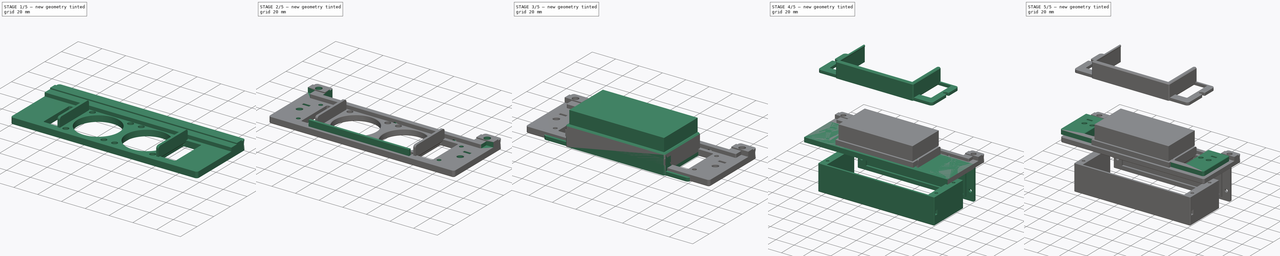
[diagram: build sequence overview — one tinted view per stage of 5, left to right]
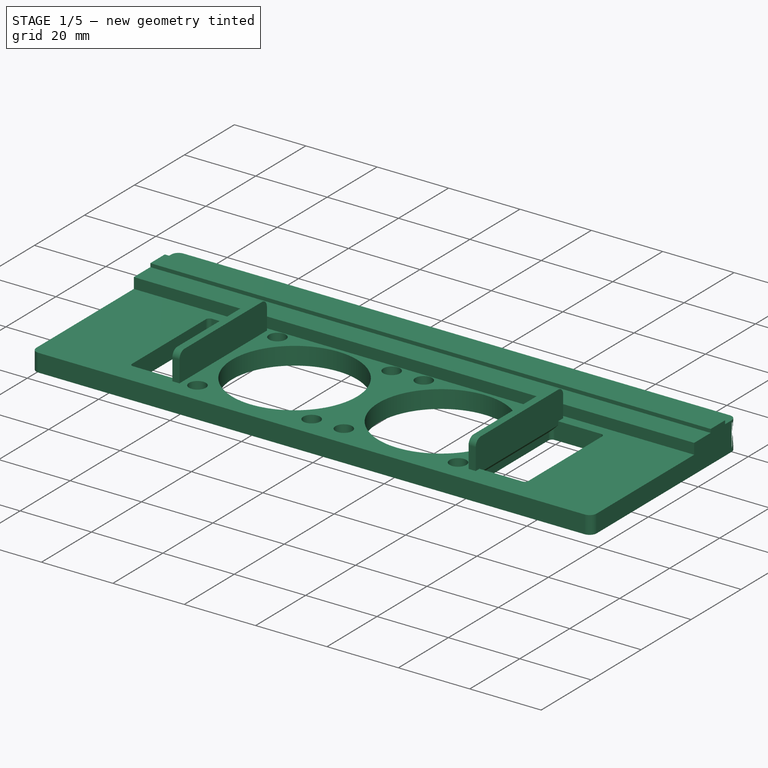
[diagram: stage 1 of 5 — iso view after this stage's code; geometry added in this stage tinted green]
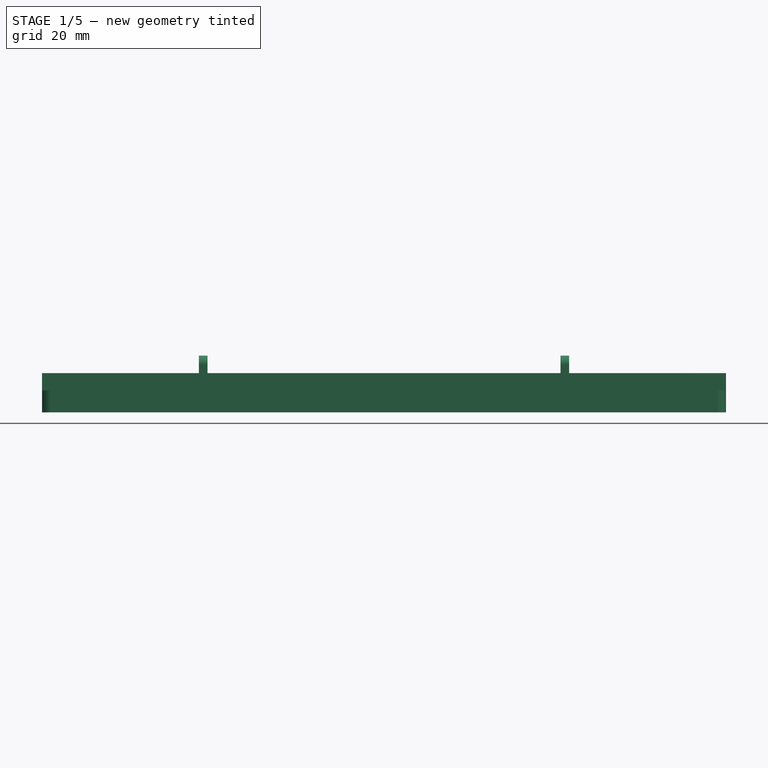
[diagram: stage 1 of 5 — front view after this stage's code; geometry added in this stage tinted green]
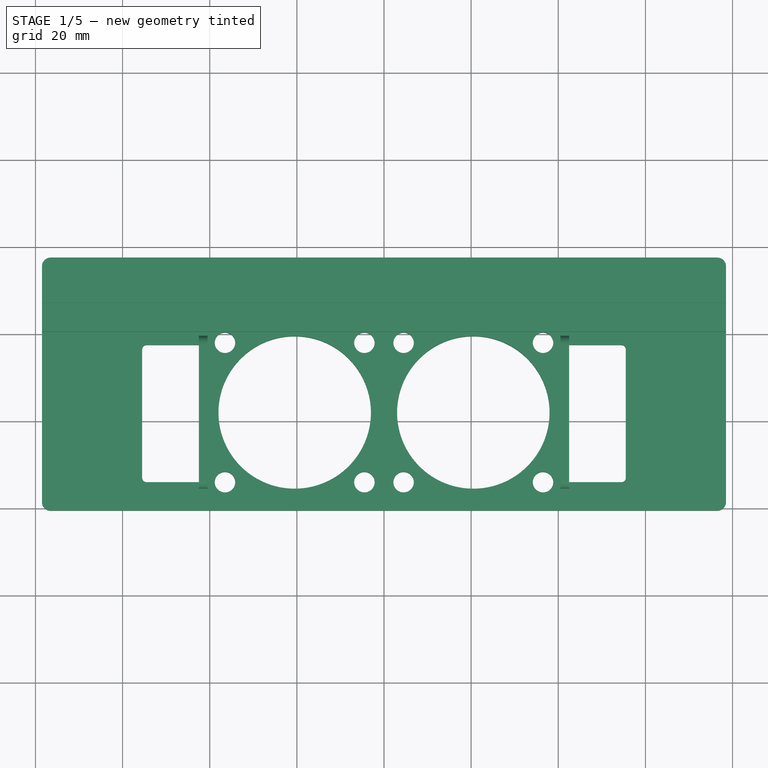
[diagram: stage 1 of 5 — top view after this stage's code; geometry added in this stage tinted green]
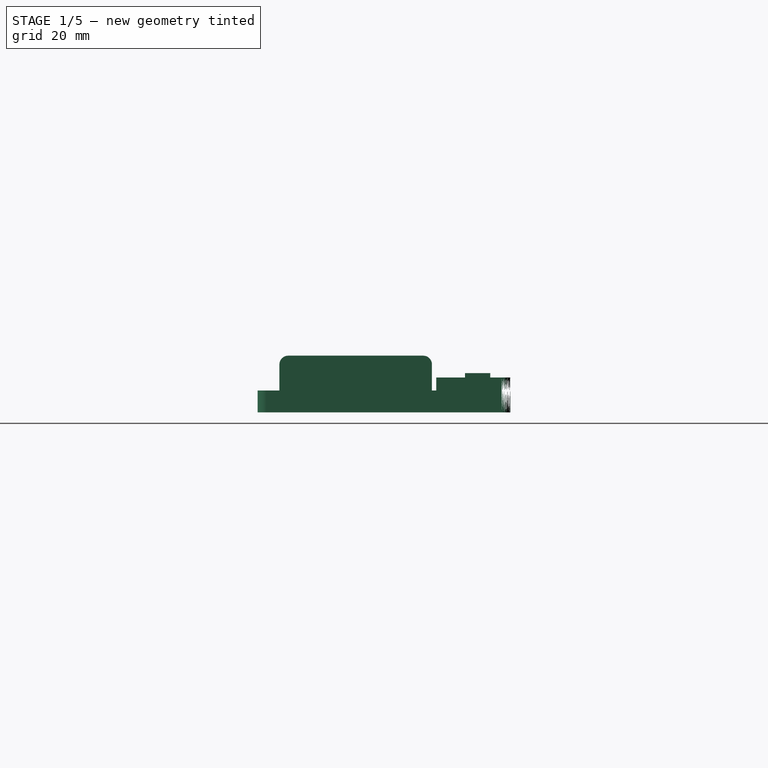
[diagram: stage 1 of 5 — right view after this stage's code; geometry added in this stage tinted green]
FCSTD DOCUMENT  (FreeCAD 0.19R24291 (Git))
Label: filter
License: Other
LicenseURL: GPL3
objects: Sketcher::SketchObject×30, PartDesign::Pocket×21, Part::Chamfer×12, PartDesign::Pad×11, PartDesign::Fillet×9, Part::Refine×6, Part::Box×6, PartDesign::Body×5, Part::Feature×3, Part::Fillet×3, Part::MultiFuse×3, PartDesign::Chamfer×2
note: 154 computed .brp shape members not serialized (recipe doc carries the construction recipe); baked Part::Feature solids carry a one-line shape summary decoded from their .brp

FEATURE [Sketcher::SketchObject] Sketch
  FullyConstrained = true
  MapMode = 5
  Support = -> [XY_Plane]
  sketch-geometry (4):
    g0: LineSegment StartX=-78.5 StartY=17.5 StartZ=0 EndX=78.5 EndY=17.5 EndZ=0
    g1: LineSegment StartX=78.5 StartY=17.5 StartZ=0 EndX=78.5 EndY=-40.5 EndZ=0
    g2: LineSegment StartX=78.5 StartY=-40.5 StartZ=0 EndX=-78.5 EndY=-40.5 EndZ=0
    g3: LineSegment StartX=-78.5 StartY=-40.5 StartZ=0 EndX=-78.5 EndY=17.5 EndZ=0
  constraints (12):
    c: Coincident(g0,g1)
    c: Coincident(g1,g2)
    c: Coincident(g2,g3)
    c: Coincident(g3,g0)
    c: Horizontal(g0)
    c: Horizontal(g2)
    c: Vertical(g1)
    c: Vertical(g3)
    c: DistanceX(g0,g0) = 157
    c: DistanceY(g1,g1) = 58
    c: DistanceX(g0,g-1) = 78.5
    c: DistanceY(g-1,g0) = 17.5
FEATURE [PartDesign::Pad] Pad
  Direction = (1,1,1)
  Length = 5
  Length2 = 100
  Profile = -> Sketch
  Type = 0
FEATURE [PartDesign::Fillet] Fillet
  Base = -> Pad [Edge8,Edge1,Edge2,Edge5]
  BaseFeature = -> Pad
  Radius = 2
  SupportTransform = false
FEATURE [Sketcher::SketchObject] Sketch001
  FullyConstrained = true
  MapMode = 5
  Placement = pos=(0,0,5) rot=(0,0,1;0rad)
  Support = -> [Fillet]
  sketch-geometry (4):
    g0: LineSegment StartX=-78.5 StartY=17.5 StartZ=0 EndX=78.5 EndY=17.5 EndZ=0
    g1: LineSegment StartX=78.5 StartY=17.5 StartZ=0 EndX=78.5 EndY=0.5 EndZ=0
    g2: LineSegment StartX=78.5 StartY=0.5 StartZ=0 EndX=-78.5 EndY=0.5 EndZ=0
    g3: LineSegment StartX=-78.5 StartY=0.5 StartZ=0 EndX=-78.5 EndY=17.5 EndZ=0
  constraints (12):
    c: Coincident(g0,g1)
    c: Coincident(g1,g2)
    c: Coincident(g2,g3)
    c: Coincident(g3,g0)
    c: Horizontal(g0)
    c: Horizontal(g2)
    c: Vertical(g1)
    c: Vertical(g3)
    c: DistanceX(g0,g0) = 157
    c: DistanceX(g0,g-1) = 78.5
    c: DistanceY(g1,g1) = 17
    c: DistanceY(g-1,g2) = 0.5
FEATURE [PartDesign::Pad] Pad001
  BaseFeature = -> Fillet
  Direction = (1,1,1)
  Length = 3
  Length2 = 100
  Profile = -> Sketch001
  Type = 0
FEATURE [PartDesign::Fillet] Fillet001
  Base = -> Pad001 [Edge16,Edge17]
  BaseFeature = -> Pad001
  Radius = 2
  SupportTransform = false
FEATURE [Sketcher::SketchObject] Sketch002
  FullyConstrained = true
  MapMode = 5
  Placement = pos=(0,0,0) rot=(1,0,0;3.14159rad)
  Support = -> [Fillet001]
  sketch-geometry (28):
    g0: LineSegment StartX=-40.5 StartY=38 StartZ=0 EndX=-0.5 EndY=38 EndZ=0
    g1: LineSegment StartX=-0.5 StartY=38 StartZ=0 EndX=-0.5 EndY=-2 EndZ=0
    g2: LineSegment StartX=-0.5 StartY=-2 StartZ=0 EndX=-40.5 EndY=-2 EndZ=0
    g3: LineSegment StartX=-40.5 StartY=-2 StartZ=0 EndX=-40.5 EndY=38 EndZ=0
    g4: LineSegment StartX=0.5 StartY=38 StartZ=0 EndX=40.5 EndY=38 EndZ=0
    g5: LineSegment StartX=40.5 StartY=38 StartZ=0 EndX=40.5 EndY=-2 EndZ=0
    g6: LineSegment StartX=40.5 StartY=-2 StartZ=0 EndX=0.5 EndY=-2 EndZ=0
    g7: LineSegment StartX=0.5 StartY=-2 StartZ=0 EndX=0.5 EndY=38 EndZ=0
    g8: GeomPoint X=-36.5 Y=34 Z=0
    g9: GeomPoint X=-36.5 Y=2 Z=0
    g10: GeomPoint X=-4.5 Y=2 Z=0
    g11: GeomPoint X=-4.5 Y=34 Z=0
    g12: GeomPoint X=4.5 Y=34 Z=0
    g13: GeomPoint X=4.5 Y=2 Z=0
    g14: GeomPoint X=36.5 Y=2 Z=0
    g15: GeomPoint X=36.5 Y=34 Z=0
    g16: GeomPoint X=20.5 Y=18 Z=0
    g17: GeomPoint X=-20.5 Y=18 Z=0
    g18: Circle CenterX=-36.5 CenterY=34 CenterZ=0 NormalX=0 NormalY=0 NormalZ=1 AngleXU=0 Radius=2.35
    g19: Circle CenterX=-4.5 CenterY=34 CenterZ=0 NormalX=0 NormalY=0 NormalZ=1 AngleXU=0 Radius=2.35
    g20: Circle CenterX=-36.5 CenterY=2 CenterZ=0 NormalX=0 NormalY=0 NormalZ=1 AngleXU=0 Radius=2.35
    g21: Circle CenterX=-20.5 CenterY=18 CenterZ=0 NormalX=0 NormalY=0 NormalZ=1 AngleXU=0 Radius=17.5
    g22: Circle CenterX=-4.5 CenterY=2 CenterZ=0 NormalX=0 NormalY=0 NormalZ=1 AngleXU=0 Radius=2.35
    g23: Circle CenterX=4.5 CenterY=2 CenterZ=0 NormalX=0 NormalY=0 NormalZ=1 AngleXU=0 Radius=2.35
    g24: Circle CenterX=36.5 CenterY=2 CenterZ=0 NormalX=0 NormalY=0 NormalZ=1 AngleXU=0 Radius=2.35
    g25: Circle CenterX=4.5 CenterY=34 CenterZ=0 NormalX=0 NormalY=0 NormalZ=1 AngleXU=0 Radius=2.35
    g26: Circle CenterX=36.5 CenterY=34 CenterZ=0 NormalX=0 NormalY=0 NormalZ=1 AngleXU=0 Radius=2.35
    g27: Circle CenterX=20.5 CenterY=18 CenterZ=0 NormalX=0 NormalY=0 NormalZ=1 AngleXU=0 Radius=17.5
  constraints (64):
    c: Coincident(g0,g1)
    c: Coincident(g1,g2)
    c: Coincident(g2,g3)
    c: Coincident(g3,g0)
    c: Horizontal(g0)
    c: Horizontal(g2)
    c: Vertical(g1)
    c: Vertical(g3)
    c: Coincident(g4,g5)
    c: Coincident(g5,g6)
    c: Coincident(g6,g7)
    c: Coincident(g7,g4)
    c: Horizontal(g4)
    c: Horizontal(g6)
    c: Vertical(g5)
    c: Vertical(g7)
    c: DistanceX(g0,g0) = 40
    c: DistanceX(g4,g4) = 40
    c: DistanceX(g-1,g6) = 0.5
    c: DistanceX(g1,g-1) = 0.5
    c: DistanceY(g3,g3) = 40
    c: DistanceY(g5,g5) = 40
    c: DistanceY(g1,g-1) = 2
    c: DistanceY(g6,g-1) = 2
    c: DistanceX(g0,g8) = 4
    c: DistanceX(g11,g0) = 4
    c: DistanceX(g2,g9) = 4
    c: DistanceX(g10,g1) = 4
    c: DistanceX(g6,g13) = 4
    c: DistanceX(g14,g5) = 4
    c: DistanceX(g4,g12) = 4
    c: DistanceX(g15,g4) = 4
    c: DistanceY(g15,g4) = 4
    c: DistanceY(g12,g4) = 4
    c: DistanceY(g6,g13) = 4
    c: DistanceY(g5,g14) = 4
    c: DistanceY(g2,g9) = 4
    c: DistanceY(g1,g10) = 4
    c: DistanceY(g8,g0) = 4
    c: DistanceY(g11,g0) = 4
    c: DistanceY(g17,g0) = 20
    c: DistanceY(g16,g4) = 20
    c: DistanceX(g16,g4) = 20
    c: DistanceX(g0,g17) = 20
    c: Coincident(g18,g8)
    c: Coincident(g19,g11)
    c: Coincident(g20,g9)
    c: Coincident(g21,g17)
    c: Coincident(g22,g10)
    c: Coincident(g23,g13)
    c: Coincident(g24,g14)
    c: Coincident(g25,g12)
    c: Coincident(g26,g15)
    c: Radius(g18) = 2.35
    c: Radius(g20) = 2.35
    c: Radius(g19) = 2.35
    c: Radius(g22) = 2.35
    c: Radius(g25) = 2.35
    c: Radius(g23) = 2.35
    c: Radius(g26) = 2.35
    c: Radius(g24) = 2.35
    c: Coincident(g27,g16)
    c: Radius(g21) = 17.5
    c: Radius(g27) = 17.5
FEATURE [PartDesign::Pocket] Pocket
  BaseFeature = -> Fillet001
  Length = 5
  Length2 = 100
  Profile = -> Sketch002
  Type = 0
FEATURE [Sketcher::SketchObject] Sketch003
  FullyConstrained = true
  MapMode = 5
  Placement = pos=(0,0,8) rot=(0,0,1;0rad)
  Support = -> [Pocket]
  sketch-geometry (4):
    g0: LineSegment StartX=-78.5 StartY=12.9 StartZ=0 EndX=78.5 EndY=12.9 EndZ=0
    g1: LineSegment StartX=78.5 StartY=12.9 StartZ=0 EndX=78.5 EndY=7.1 EndZ=0
    g2: LineSegment StartX=78.5 StartY=7.1 StartZ=0 EndX=-78.5 EndY=7.1 EndZ=0
    g3: LineSegment StartX=-78.5 StartY=7.1 StartZ=0 EndX=-78.5 EndY=12.9 EndZ=0
  constraints (12):
    c: Coincident(g0,g1)
    c: Coincident(g1,g2)
    c: Coincident(g2,g3)
    c: Coincident(g3,g0)
    c: Horizontal(g0)
    c: Horizontal(g2)
    c: Vertical(g1)
    c: Vertical(g3)
    c: DistanceX(g0,g0) = 157
    c: DistanceY(g3,g3) = 5.8
    c: DistanceY(g-1,g2) = 7.1
    c: DistanceX(g2,g-1) = 78.5
FEATURE [PartDesign::Pad] Pad002
  BaseFeature = -> Pocket
  Direction = (1,1,1)
  Length = 1
  Length2 = 100
  Profile = -> Sketch003
  Type = 0
FEATURE [Sketcher::SketchObject] Sketch006
  FullyConstrained = true
  MapMode = 5
  Placement = pos=(0,0,0) rot=(1,0,0;3.14159rad)
  Support = -> [Pad002]
  sketch-geometry (8):
    g0: LineSegment StartX=-55.5 StartY=34 StartZ=0 EndX=-40.5 EndY=34 EndZ=0
    g1: LineSegment StartX=-40.5 StartY=34 StartZ=0 EndX=-40.5 EndY=2.5 EndZ=0
    g2: LineSegment StartX=-40.5 StartY=2.5 StartZ=0 EndX=-55.5 EndY=2.5 EndZ=0
    g3: LineSegment StartX=-55.5 StartY=2.5 StartZ=0 EndX=-55.5 EndY=34 EndZ=0
    g4: LineSegment StartX=40.5 StartY=34 StartZ=0 EndX=55.5 EndY=34 EndZ=0
    g5: LineSegment StartX=55.5 StartY=34 StartZ=0 EndX=55.5 EndY=2.5 EndZ=0
    g6: LineSegment StartX=55.5 StartY=2.5 StartZ=0 EndX=40.5 EndY=2.5 EndZ=0
    g7: LineSegment StartX=40.5 StartY=2.5 StartZ=0 EndX=40.5 EndY=34 EndZ=0
  constraints (24):
    c: Coincident(g0,g1)
    c: Coincident(g1,g2)
    c: Coincident(g2,g3)
    c: Coincident(g3,g0)
    c: Horizontal(g0)
    c: Horizontal(g2)
    c: Vertical(g1)
    c: Vertical(g3)
    c: Coincident(g4,g5)
    c: Coincident(g5,g6)
    c: Coincident(g6,g7)
    c: Coincident(g7,g4)
    c: Horizontal(g4)
    c: Horizontal(g6)
    c: Vertical(g5)
    c: Vertical(g7)
    c: DistanceX(g2,g2) = 15
    c: DistanceX(g6,g6) = 15
    c: DistanceX(g1,g-1) = 40.5
    c: DistanceX(g-1,g6) = 40.5
    c: DistanceY(g-1,g1) = 2.5
    c: DistanceY(g-1,g6) = 2.5
    c: DistanceY(g3,g3) = 31.5
    c: DistanceY(g7,g7) = 31.5
FEATURE [PartDesign::Pocket] Pocket001
  BaseFeature = -> Pad002
  Length = 5
  Length2 = 100
  Profile = -> Sketch006
  Type = 0
FEATURE [PartDesign::Fillet] Fillet002
  Base = -> Pocket001 [Edge81,Edge78,Edge79,Edge83,Edge95,Edge93,Edge90,Edge91]
  BaseFeature = -> Pocket001
  Radius = 1
  SupportTransform = false
FEATURE [Part::Box] Box  label="Cube"
  AttacherType = Attacher::AttachEngine3D
  Height = 11
  Length = 2
  Placement = pos=(-42.5,-35.5,2) rot=(0,0,1;0rad)
  Width = 35
FEATURE [Part::Box] Box001  label="Cube001"
  AttacherType = Attacher::AttachEngine3D
  Height = 11
  Length = 2
  Placement = pos=(40.5,-35.5,2) rot=(0,0,1;0rad)
  Width = 35
FEATURE [Part::MultiFuse] Fusion
  Shapes = -> [Box,Box001]
FEATURE [Part::Fillet] Fillet011
  Base = -> Fusion
  Edges = 4 edges r=2: [Edge10,Edge12,Edge22,Edge24]
FEATURE [Part::Chamfer] Chamfer013
  Base = -> Fillet011
  Edges = 2 edges r=1.99: [Edge2,Edge31]
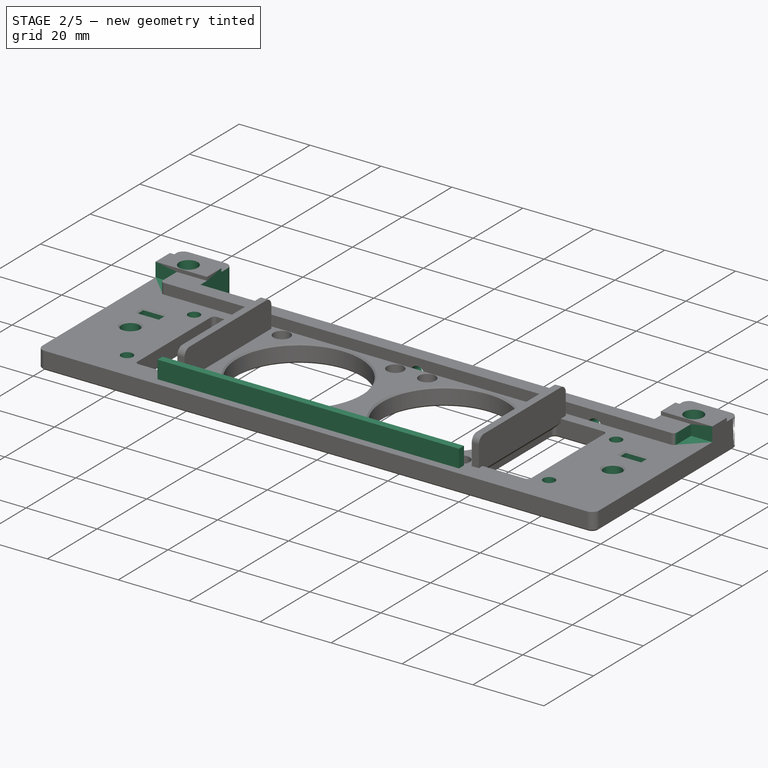
[diagram: stage 2 of 5 — iso view after this stage's code; geometry added in this stage tinted green]
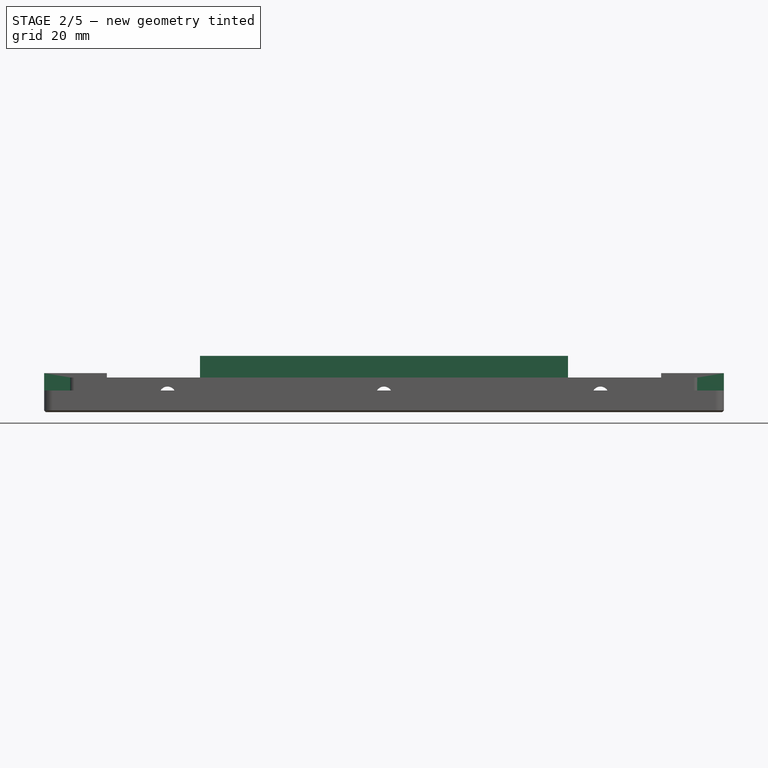
[diagram: stage 2 of 5 — front view after this stage's code; geometry added in this stage tinted green]
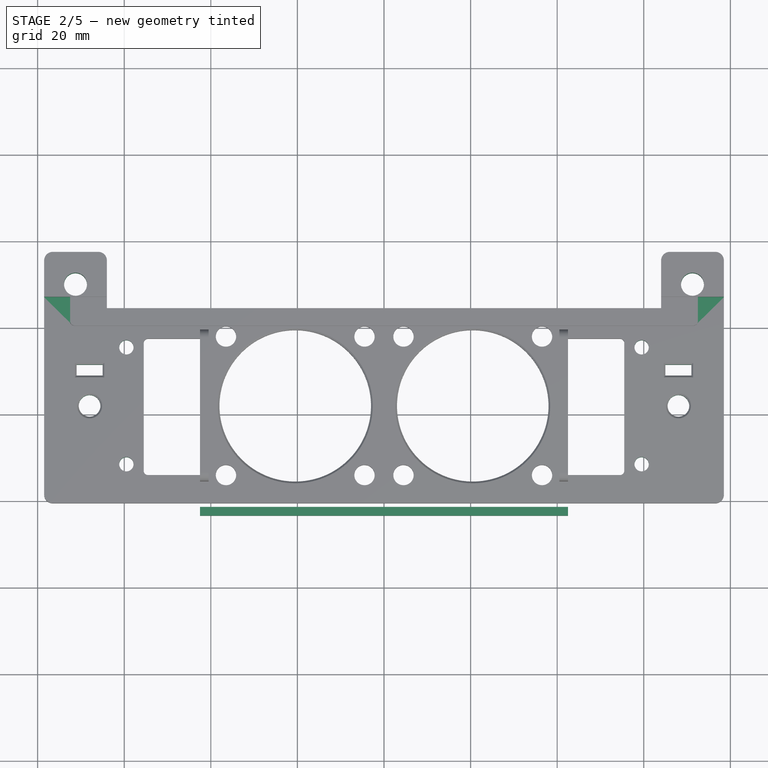
[diagram: stage 2 of 5 — top view after this stage's code; geometry added in this stage tinted green]
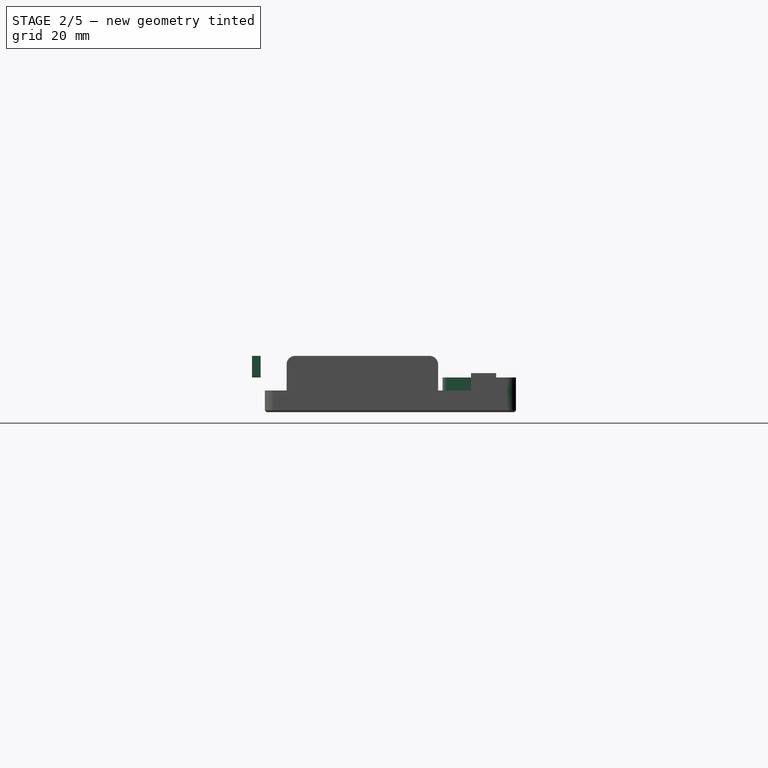
[diagram: stage 2 of 5 — right view after this stage's code; geometry added in this stage tinted green]
FEATURE [Sketcher::SketchObject] Sketch009
  FullyConstrained = true
  MapMode = 5
  Placement = pos=(0,0,0) rot=(1,0,0;3.14159rad)
  Support = -> [Fillet002]
  sketch-geometry (4):
    g0: Circle CenterX=-59.5 CenterY=31.5 CenterZ=0 NormalX=0 NormalY=0 NormalZ=1 AngleXU=0 Radius=1.65
    g1: Circle CenterX=-59.5 CenterY=4.5 CenterZ=0 NormalX=0 NormalY=0 NormalZ=1 AngleXU=0 Radius=1.65
    g2: Circle CenterX=59.5 CenterY=31.5 CenterZ=0 NormalX=0 NormalY=0 NormalZ=1 AngleXU=0 Radius=1.65
    g3: Circle CenterX=59.5 CenterY=4.5 CenterZ=0 NormalX=0 NormalY=0 NormalZ=1 AngleXU=0 Radius=1.65
  constraints (12):
    c: DistanceX(g1,g0) = 0
    c: DistanceX(g3,g2) = 0
    c: DistanceY(g1,g0) = 27
    c: DistanceY(g3,g2) = 27
    c: DistanceX(g1,g-1) = 59.5
    c: DistanceX(g-1,g3) = 59.5
    c: Radius(g0) = 1.65
    c: Radius(g1) = 1.65
    c: Radius(g2) = 1.65
    c: Radius(g3) = 1.65
    c: DistanceY(g-1,g1) = 4.5
    c: DistanceY(g-1,g3) = 4.5
FEATURE [PartDesign::Pocket] Pocket005
  BaseFeature = -> Fillet002
  Length = 5
  Length2 = 100
  Profile = -> Sketch009
  Type = 0
FEATURE [Sketcher::SketchObject] Sketch014
  FullyConstrained = true
  MapMode = 5
  Placement = pos=(0,0,8) rot=(0,0,1;0rad)
  Support = -> [Pocket005]
  sketch-geometry (8):
    g0: LineSegment StartX=-72.5 StartY=0 StartZ=0 EndX=-78.5 EndY=0 EndZ=0
    g1: LineSegment StartX=-78.5 StartY=0 StartZ=0 EndX=-78.5 EndY=7.1 EndZ=0
    g2: LineSegment StartX=-78.5 StartY=7.1 StartZ=0 EndX=-72.5 EndY=7.1 EndZ=0
    g3: LineSegment StartX=-72.5 StartY=7.1 StartZ=0 EndX=-72.5 EndY=0 EndZ=0
    g4: LineSegment StartX=72.5 StartY=0 StartZ=0 EndX=78.5 EndY=0 EndZ=0
    g5: LineSegment StartX=78.5 StartY=0 StartZ=0 EndX=78.5 EndY=7.1 EndZ=0
    g6: LineSegment StartX=78.5 StartY=7.1 StartZ=0 EndX=72.5 EndY=7.1 EndZ=0
    g7: LineSegment StartX=72.5 StartY=7.1 StartZ=0 EndX=72.5 EndY=0 EndZ=0
  constraints (24):
    c: Coincident(g0,g1)
    c: Coincident(g1,g2)
    c: Coincident(g2,g3)
    c: Coincident(g3,g0)
    c: Horizontal(g0)
    c: Horizontal(g2)
    c: Vertical(g1)
    c: Vertical(g3)
    c: Coincident(g4,g5)
    c: Coincident(g5,g6)
    c: Coincident(g6,g7)
    c: Coincident(g7,g4)
    c: Horizontal(g4)
    c: Horizontal(g6)
    c: Vertical(g5)
    c: Vertical(g7)
    c: DistanceX(g0,g-1) = 72.5
    c: DistanceX(g-1,g4) = 72.5
    c: DistanceY(g-1,g0) = 0
    c: DistanceY(g-1,g4) = 0
    c: DistanceY(g7,g7) = 7.1
    c: DistanceY(g3,g3) = 7.1
    c: DistanceX(g2,g2) = 6
    c: DistanceX(g6,g6) = 6
FEATURE [PartDesign::Pocket] Pocket009
  BaseFeature = -> Pocket005
  Length = 3
  Length2 = 100
  Profile = -> Sketch014
  Type = 0
FEATURE [Sketcher::SketchObject] Sketch015
  FullyConstrained = true
  MapMode = 5
  Placement = pos=(0,0,0) rot=(1,0,0;3.14159rad)
  Support = -> [Pocket009]
  sketch-geometry (4):
    g0: LineSegment StartX=-64 StartY=-4.5 StartZ=0 EndX=64 EndY=-4.5 EndZ=0
    g1: LineSegment StartX=64 StartY=-4.5 StartZ=0 EndX=64 EndY=-17.5 EndZ=0
    g2: LineSegment StartX=64 StartY=-17.5 StartZ=0 EndX=-64 EndY=-17.5 EndZ=0
    g3: LineSegment StartX=-64 StartY=-17.5 StartZ=0 EndX=-64 EndY=-4.5 EndZ=0
  constraints (12):
    c: Coincident(g0,g1)
    c: Coincident(g1,g2)
    c: Coincident(g2,g3)
    c: Coincident(g3,g0)
    c: Horizontal(g0)
    c: Horizontal(g2)
    c: Vertical(g1)
    c: Vertical(g3)
    c: DistanceX(g2,g2) = 128
    c: DistanceX(g0,g-1) = 64
    c: DistanceY(g1,g1) = 13
    c: DistanceY(g0,g-1) = 4.5
FEATURE [PartDesign::Pocket] Pocket010
  BaseFeature = -> Pocket009
  Length = 5
  Length2 = 100
  Profile = -> Sketch015
  Type = 1
FEATURE [PartDesign::Fillet] Fillet007
  Base = -> Pocket010 [Edge65,Edge81]
  BaseFeature = -> Pocket010
  Radius = 2
  SupportTransform = false
FEATURE [Sketcher::SketchObject] Sketch016
  FullyConstrained = true
  MapMode = 5
  Placement = pos=(0,0,0) rot=(1,0,0;3.14159rad)
  Support = -> [Fillet007]
  sketch-geometry (2):
    g0: Circle CenterX=-71.25 CenterY=-10 CenterZ=0 NormalX=0 NormalY=0 NormalZ=1 AngleXU=0 Radius=2.65
    g1: Circle CenterX=71.25 CenterY=-10 CenterZ=0 NormalX=0 NormalY=0 NormalZ=1 AngleXU=0 Radius=2.65
  constraints (6):
    c: DistanceX(g-1,g1) = 71.25
    c: DistanceX(g0,g-1) = 71.25
    c: DistanceY(g1,g-1) = 10
    c: DistanceY(g0,g-1) = 10
    c: Radius(g0) = 2.65
    c: Radius(g1) = 2.65
FEATURE [PartDesign::Pocket] Pocket011
  BaseFeature = -> Fillet007
  Length = 5
  Length2 = 100
  Profile = -> Sketch016
  Type = 1
FEATURE [Sketcher::SketchObject] Sketch017
  FullyConstrained = true
  MapMode = 5
  Placement = pos=(0,4.5,0) rot=(0,0.707107,0.707107;3.14159rad)
  Support = -> [Pocket011]
  sketch-geometry (3):
    g0: Circle CenterX=-50 CenterY=4 CenterZ=0 NormalX=0 NormalY=0 NormalZ=1 AngleXU=0 Radius=1.9
    g1: Circle CenterX=50 CenterY=4 CenterZ=0 NormalX=0 NormalY=0 NormalZ=1 AngleXU=0 Radius=1.9
    g2: Circle CenterX=0 CenterY=4 CenterZ=0 NormalX=0 NormalY=0 NormalZ=1 AngleXU=0 Radius=1.9
  constraints (9):
    c: DistanceY(g-1,g0) = 4
    c: DistanceY(g-1,g1) = 4
    c: Radius(g0) = 1.9
    c: Radius(g1) = 1.9
    c: DistanceY(g-1,g2) = 4
    c: Radius(g2) = 1.9
    c: DistanceX(g2,g-1) = 0
    c: DistanceX(g0,g-1) = 50
    c: DistanceX(g-1,g1) = 50
FEATURE [PartDesign::Pocket] Pocket012
  BaseFeature = -> Pocket011
  Length = 4
  Length2 = 100
  Profile = -> Sketch017
  Type = 0
FEATURE [PartDesign::Fillet] Fillet008
  Base = -> Pocket012 [Edge228,Edge226]
  BaseFeature = -> Pocket012
  Radius = 1
  SupportTransform = false
FEATURE [PartDesign::Body] Body001
  Group = -> [Sketch004,Pad003,Sketch005,Pad004,Fillet003,Sketch007,Pocket002,Pocket003,Sketch008,Pocket004,Fillet004,Fillet005,Fillet006,Sketch013,Pocket008,Sketch021,Pocket015]
  Origin = -> Origin001
  Placement = pos=(0,0,40) rot=(0,0,1;0rad)
  Tip = -> Pocket015
FEATURE [Sketcher::SketchObject] Sketch022
  FullyConstrained = true
  MapMode = 5
  Placement = pos=(0,0,0) rot=(1,0,0;3.14159rad)
  Support = -> [Fillet008]
  sketch-geometry (10):
    g0: Circle CenterX=-68 CenterY=18 CenterZ=0 NormalX=0 NormalY=0 NormalZ=1 AngleXU=0 Radius=2.5
    g1: Circle CenterX=68 CenterY=18 CenterZ=0 NormalX=0 NormalY=0 NormalZ=1 AngleXU=0 Radius=2.5
    g2: LineSegment StartX=-71 StartY=11 StartZ=0 EndX=-65 EndY=11 EndZ=0
    g3: LineSegment StartX=-65 StartY=11 StartZ=0 EndX=-65 EndY=8.5 EndZ=0
    g4: LineSegment StartX=-65 StartY=8.5 StartZ=0 EndX=-71 EndY=8.5 EndZ=0
    g5: LineSegment StartX=-71 StartY=8.5 StartZ=0 EndX=-71 EndY=11 EndZ=0
    g6: LineSegment StartX=65 StartY=11 StartZ=0 EndX=71 EndY=11 EndZ=0
    g7: LineSegment StartX=71 StartY=11 StartZ=0 EndX=71 EndY=8.5 EndZ=0
    g8: LineSegment StartX=71 StartY=8.5 StartZ=0 EndX=65 EndY=8.5 EndZ=0
    g9: LineSegment StartX=65 StartY=8.5 StartZ=0 EndX=65 EndY=11 EndZ=0
  constraints (30):
    c: DistanceY(g-1,g0) = 18
    c: DistanceY(g-1,g1) = 18
    c: DistanceX(g0,g-1) = 68
    c: DistanceX(g-1,g1) = 68
    c: Radius(g0) = 2.5
    c: Radius(g1) = 2.5
    c: Coincident(g2,g3)
    c: Coincident(g3,g4)
    c: Coincident(g4,g5)
    c: Coincident(g5,g2)
    c: Horizontal(g2)
    c: Horizontal(g4)
    c: Vertical(g3)
    c: Vertical(g5)
    c: Coincident(g6,g7)
    c: Coincident(g7,g8)
    c: Coincident(g8,g9)
    c: Coincident(g9,g6)
    c: Horizontal(g6)
    c: Horizontal(g8)
    c: Vertical(g7)
    c: Vertical(g9)
    c: DistanceX(g2,g2) = 6
    c: DistanceX(g6,g6) = 6
    c: DistanceY(g9,g9) = 2.5
    c: DistanceY(g3,g3) = 2.5
    c: DistanceY(g2,g0) = 7
    c: DistanceY(g6,g1) = 7
    c: DistanceX(g6,g1) = 3
    c: DistanceX(g2,g0) = 3
FEATURE [PartDesign::Pocket] Pocket016
  BaseFeature = -> Fillet008
  Length = 5
  Length2 = 100
  Profile = -> Sketch022
  Type = 1
FEATURE [Part::Chamfer] Chamfer004
  Base = -> Body004
  Edges = 22 edges r=0.4: [Edge73,Edge95,Edge96,Edge97,Edge98,Edge99,Edge103,Edge106,Edge107,Edge108,Edge109,Edge111,Edge183,Edge185,Edge187,Edge189,Edge191,Edge203,Edge205,Edge207,Edge209,Edge211]
FEATURE [Part::Chamfer] Chamfer005
  Base = -> Chamfer004
  Edges = 24 edges r=0.4: [Edge16,Edge19,Edge20,Edge21,Edge22,Edge23,Edge24,Edge25,Edge26,Edge27,Edge30,Edge31,Edge32,Edge33,Edge34,Edge35,Edge36,Edge37,Edge38,Edge39,Edge40,Edge45,Edge133,Edge141]
FEATURE [Part::Chamfer] Chamfer006
  Base = -> Chamfer005
  Edges = 14 edges r=0.4: [Edge3,Edge4,Edge5,Edge6,Edge7,Edge8,Edge9,Edge10,Edge11,Edge12,Edge13,Edge14,Edge15,Edge16]
FEATURE [Part::Chamfer] Chamfer007
  Base = -> Chamfer006
  Edges = 8 edges r=0.2: [Edge17,Edge18,Edge19,Edge20,Edge21,Edge22,Edge23,Edge24]
FEATURE [Part::Box] Box005  label="Cube005"
  AttacherType = Attacher::AttachEngine3D
  Height = 5
  Length = 85
  Placement = pos=(-42.5,-43.5,8) rot=(0,0,1;0rad)
  Width = 2
FEATURE [Part::MultiFuse] Fusion003
  Shapes = -> [Chamfer013,Chamfer007]
FEATURE [Part::Refine] Fusion003001
  Source = -> Fusion003
FEATURE [Part::Feature] Fusion003001_solid  label="Fusion003001 (Solid)"
  shape: bbox 157 x 58 x 13 mm, 168 faces (baked)
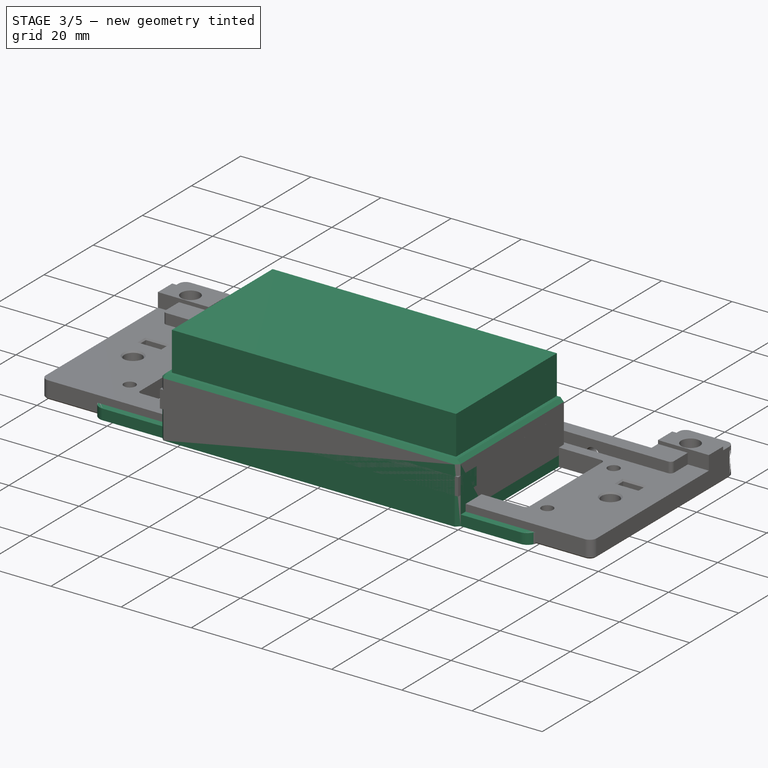
[diagram: stage 3 of 5 — iso view after this stage's code; geometry added in this stage tinted green]
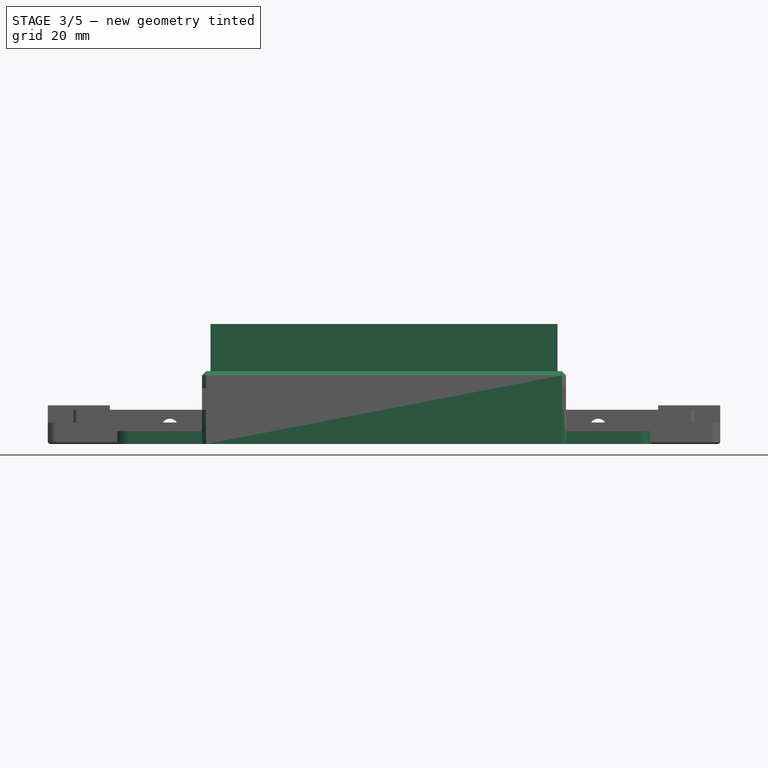
[diagram: stage 3 of 5 — front view after this stage's code; geometry added in this stage tinted green]
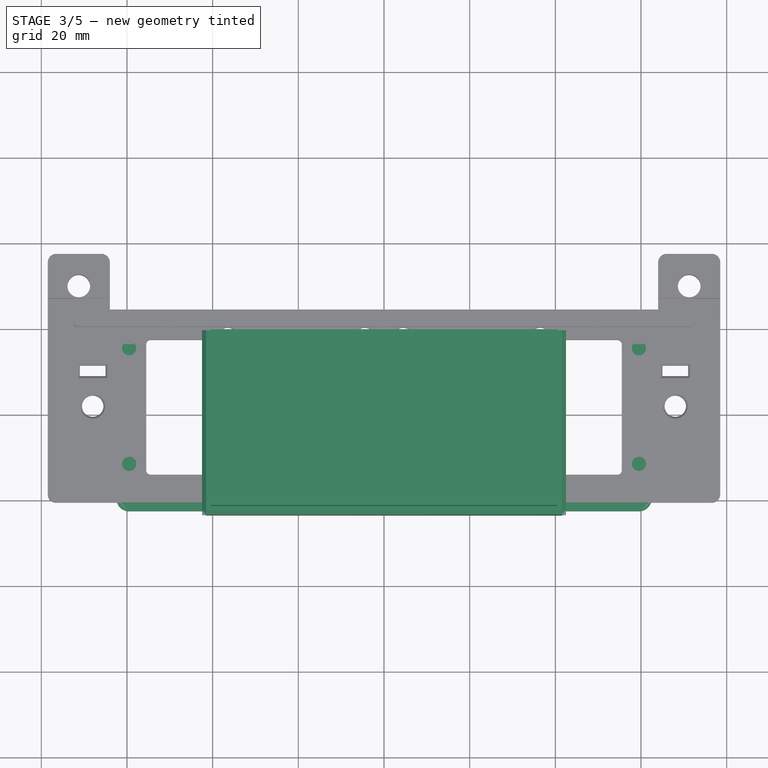
[diagram: stage 3 of 5 — top view after this stage's code; geometry added in this stage tinted green]
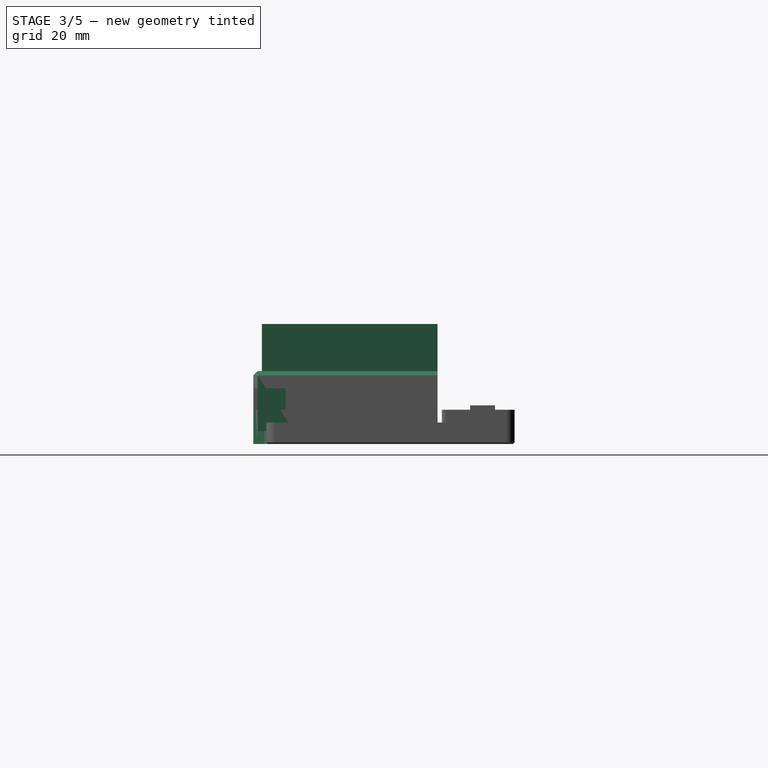
[diagram: stage 3 of 5 — right view after this stage's code; geometry added in this stage tinted green]
FEATURE [Sketcher::SketchObject] Sketch025
  FullyConstrained = true
  MapMode = 5
  Support = -> [XY_Plane004]
  sketch-geometry (4):
    g0: LineSegment StartX=-62.5 StartY=-0.5 StartZ=0 EndX=62.5 EndY=-0.5 EndZ=0
    g1: LineSegment StartX=62.5 StartY=-0.5 StartZ=0 EndX=62.5 EndY=-42.5 EndZ=0
    g2: LineSegment StartX=62.5 StartY=-42.5 StartZ=0 EndX=-62.5 EndY=-42.5 EndZ=0
    g3: LineSegment StartX=-62.5 StartY=-42.5 StartZ=0 EndX=-62.5 EndY=-0.5 EndZ=0
  constraints (12):
    c: Coincident(g0,g1)
    c: Coincident(g1,g2)
    c: Coincident(g2,g3)
    c: Coincident(g3,g0)
    c: Horizontal(g0)
    c: Horizontal(g2)
    c: Vertical(g1)
    c: Vertical(g3)
    c: DistanceX(g0,g0) = 125
    c: DistanceX(g0,g-1) = 62.5
    c: DistanceY(g3,g3) = 42
    c: DistanceY(g-1,g0) = -0.5
FEATURE [PartDesign::Pad] Pad008
  Direction = (1,1,1)
  Length = 3
  Length2 = 100
  Profile = -> Sketch025
  Type = 0
FEATURE [Sketcher::SketchObject] Sketch026
  FullyConstrained = true
  MapMode = 5
  Placement = pos=(0,0,3) rot=(0,0,1;0rad)
  Support = -> [Pad008]
  sketch-geometry (10):
    g0: LineSegment StartX=-55.5 StartY=-2.5 StartZ=0 EndX=-42.5 EndY=-2.5 EndZ=0
    g1: LineSegment StartX=-42.5 StartY=-2.5 StartZ=0 EndX=-42.5 EndY=-34 EndZ=0
    g2: LineSegment StartX=-42.5 StartY=-34 StartZ=0 EndX=-55.5 EndY=-34 EndZ=0
    g3: LineSegment StartX=-55.5 StartY=-34 StartZ=0 EndX=-55.5 EndY=-2.5 EndZ=0
    g4: LineSegment StartX=42.5 StartY=-2.5 StartZ=0 EndX=55.5 EndY=-2.5 EndZ=0
    g5: LineSegment StartX=55.5 StartY=-2.5 StartZ=0 EndX=55.5 EndY=-34 EndZ=0
    g6: LineSegment StartX=55.5 StartY=-34 StartZ=0 EndX=42.5 EndY=-34 EndZ=0
    g7: LineSegment StartX=42.5 StartY=-34 StartZ=0 EndX=42.5 EndY=-2.5 EndZ=0
    g8: Circle CenterX=-59.5 CenterY=-18 CenterZ=0 NormalX=0 NormalY=0 NormalZ=1 AngleXU=0 Radius=1.65
    g9: Circle CenterX=59.5 CenterY=-18 CenterZ=0 NormalX=0 NormalY=0 NormalZ=1 AngleXU=0 Radius=1.65
  constraints (30):
    c: Coincident(g0,g1)
    c: Coincident(g1,g2)
    c: Coincident(g2,g3)
    c: Coincident(g3,g0)
    c: Horizontal(g0)
    c: Horizontal(g2)
    c: Vertical(g1)
    c: Vertical(g3)
    c: Coincident(g4,g5)
    c: Coincident(g5,g6)
    c: Coincident(g6,g7)
    c: Coincident(g7,g4)
    c: Horizontal(g4)
    c: Horizontal(g6)
    c: Vertical(g5)
    c: Vertical(g7)
    c: DistanceX(g0,g0) = 13
    c: DistanceX(g4,g4) = 13
    c: DistanceX(g0,g-1) = 55.5
    c: DistanceX(g-1,g4) = 55.5
    c: DistanceY(g1,g-1) = 34
    c: DistanceY(g6,g-1) = 34
    c: DistanceY(g1,g1) = 31.5
    c: DistanceY(g7,g7) = 31.5
    c: Radius(g8) = 1.65
    c: Radius(g9) = 1.65
    c: DistanceX(g8,g-1) = 59.5
    c: DistanceX(g-1,g9) = 59.5
    c: DistanceY(g9,g-1) = 18
    c: DistanceY(g8,g-1) = 18
FEATURE [PartDesign::Pocket] Pocket018
  BaseFeature = -> Pad008
  Length = 5
  Length2 = 100
  Profile = -> Sketch026
  Type = 1
FEATURE [PartDesign::Pocket] Pocket019
  BaseFeature = -> Pocket018
  Length = 5
  Length2 = 100
  Profile = -> Sketch026
  Type = 1
FEATURE [Sketcher::SketchObject] Sketch027
  FullyConstrained = true
  MapMode = 5
  Placement = pos=(0,0,3) rot=(0,0,1;0rad)
  Support = -> [Pocket019]
  sketch-geometry (12):
    g0: LineSegment StartX=-64.5 StartY=-16.35 StartZ=0 EndX=-59.5 EndY=-16.35 EndZ=0
    g1: LineSegment StartX=-59.5 StartY=-16.35 StartZ=0 EndX=-59.5 EndY=-19.65 EndZ=0
    g2: LineSegment StartX=-59.5 StartY=-19.65 StartZ=0 EndX=-64.5 EndY=-19.65 EndZ=0
    g3: LineSegment StartX=-64.5 StartY=-19.65 StartZ=0 EndX=-64.5 EndY=-16.35 EndZ=0
    g4: LineSegment StartX=59.5 StartY=-16.35 StartZ=0 EndX=64.5 EndY=-16.35 EndZ=0
    g5: LineSegment StartX=64.5 StartY=-16.35 StartZ=0 EndX=64.5 EndY=-19.65 EndZ=0
    g6: LineSegment StartX=64.5 StartY=-19.65 StartZ=0 EndX=59.5 EndY=-19.65 EndZ=0
    g7: LineSegment StartX=59.5 StartY=-19.65 StartZ=0 EndX=59.5 EndY=-16.35 EndZ=0
    g8: LineSegment StartX=-40.5 StartY=-0.5 StartZ=0 EndX=40.5 EndY=-0.5 EndZ=0
    g9: LineSegment StartX=40.5 StartY=-0.5 StartZ=0 EndX=40.5 EndY=-41.5 EndZ=0
    g10: LineSegment StartX=40.5 StartY=-41.5 StartZ=0 EndX=-40.5 EndY=-41.5 EndZ=0
    g11: LineSegment StartX=-40.5 StartY=-41.5 StartZ=0 EndX=-40.5 EndY=-0.5 EndZ=0
  constraints (36):
    c: Coincident(g0,g1)
    c: Coincident(g1,g2)
    c: Coincident(g2,g3)
    c: Coincident(g3,g0)
    c: Horizontal(g0)
    c: Horizontal(g2)
    c: Vertical(g1)
    c: Vertical(g3)
    c: Coincident(g4,g5)
    c: Coincident(g5,g6)
    c: Coincident(g6,g7)
    c: Coincident(g7,g4)
    c: Horizontal(g4)
    c: Horizontal(g6)
    c: Vertical(g5)
    c: Vertical(g7)
    c: DistanceY(g1,g1) = 3.3
    c: DistanceY(g5,g5) = 3.3
    c: DistanceY(g4,g-1) = 16.35
    c: DistanceY(g0,g-1) = 16.35
    c: DistanceX(g2,g2) = 5
    c: DistanceX(g6,g6) = 5
    c: DistanceX(g-1,g4) = 59.5
    c: DistanceX(g0,g-1) = 59.5
    c: Coincident(g8,g9)
    c: Coincident(g9,g10)
    c: Coincident(g10,g11)
    c: Coincident(g11,g8)
    c: Horizontal(g8)
    c: Horizontal(g10)
    c: Vertical(g9)
    c: Vertical(g11)
    c: DistanceX(g8,g8) = 81
    c: DistanceX(g8,g-1) = 40.5
    c: DistanceY(g11,g11) = 41
    c: DistanceY(g-1,g8) = -0.5
FEATURE [PartDesign::Pocket] Pocket020
  BaseFeature = -> Pocket019
  Length = 5
  Length2 = 100
  Profile = -> Sketch027
  Type = 1
FEATURE [Sketcher::SketchObject] Sketch028
  FullyConstrained = true
  MapMode = 5
  Placement = pos=(0,0,0) rot=(1,0,0;3.14159rad)
  Support = -> [Pocket020]
  sketch-geometry (8):
    g0: LineSegment StartX=-42.5 StartY=0.5 StartZ=0 EndX=-42.5 EndY=43.5 EndZ=0
    g1: LineSegment StartX=-42.5 StartY=43.5 StartZ=0 EndX=42.5 EndY=43.5 EndZ=0
    g2: LineSegment StartX=42.5 StartY=43.5 StartZ=0 EndX=42.5 EndY=0.5 EndZ=0
    g3: LineSegment StartX=42.5 StartY=0.5 StartZ=0 EndX=40.5 EndY=0.5 EndZ=0
    g4: LineSegment StartX=40.5 StartY=0.5 StartZ=0 EndX=40.5 EndY=41.5 EndZ=0
    g5: LineSegment StartX=40.5 StartY=41.5 StartZ=0 EndX=-40.5 EndY=41.5 EndZ=0
    g6: LineSegment StartX=-40.5 StartY=41.5 StartZ=0 EndX=-40.5 EndY=0.5 EndZ=0
    g7: LineSegment StartX=-40.5 StartY=0.5 StartZ=0 EndX=-42.5 EndY=0.5 EndZ=0
  constraints (24):
    c: Vertical(g0)
    c: Coincident(g0,g1)
    c: Horizontal(g1)
    c: Coincident(g1,g2)
    c: Vertical(g2)
    c: Coincident(g2,g3)
    c: Horizontal(g3)
    c: Coincident(g3,g4)
    c: Vertical(g4)
    c: Coincident(g4,g5)
    c: Horizontal(g5)
    c: Coincident(g5,g6)
    c: Vertical(g6)
    c: Coincident(g6,g7)
    c: Coincident(g7,g0)
    c: Horizontal(g7)
    c: DistanceX(g7,g7) = 2
    c: DistanceX(g3,g3) = 2
    c: DistanceX(g5,g5) = 81
    c: DistanceY(g6,g6) = 41
    c: DistanceY(g5,g0) = 2
    c: DistanceY(g-1,g6) = 0.5
    c: DistanceX(g6,g-1) = 40.5
    c: DistanceY(g-1,g3) = 0.5
FEATURE [PartDesign::Pad] Pad009
  BaseFeature = -> Pocket020
  Direction = (1,1,1)
  Length = 17
  Length2 = 100
  Profile = -> Sketch028
  Reversed = true
  Type = 0
FEATURE [Sketcher::SketchObject] Sketch029
  FullyConstrained = true
  MapMode = 5
  Placement = pos=(0,0,17) rot=(0,0,1;0rad)
  Support = -> [Pad009]
  sketch-geometry (8):
    g0: LineSegment StartX=-42.5 StartY=-0.5 StartZ=0 EndX=-42.5 EndY=-43.5 EndZ=0
    g1: LineSegment StartX=-42.5 StartY=-43.5 StartZ=0 EndX=42.5 EndY=-43.5 EndZ=0
    g2: LineSegment StartX=42.5 StartY=-43.5 StartZ=0 EndX=42.5 EndY=-0.5 EndZ=0
    g3: LineSegment StartX=42.5 StartY=-0.5 StartZ=0 EndX=39.5 EndY=-0.5 EndZ=0
    g4: LineSegment StartX=39.5 StartY=-0.5 StartZ=0 EndX=39.5 EndY=-40.5 EndZ=0
    g5: LineSegment StartX=39.5 StartY=-40.5 StartZ=0 EndX=-39.5 EndY=-40.5 EndZ=0
    g6: LineSegment StartX=-39.5 StartY=-40.5 StartZ=0 EndX=-39.5 EndY=-0.5 EndZ=0
    g7: LineSegment StartX=-39.5 StartY=-0.5 StartZ=0 EndX=-42.5 EndY=-0.5 EndZ=0
  constraints (24):
    c: Vertical(g0)
    c: Coincident(g0,g1)
    c: Horizontal(g1)
    c: Coincident(g1,g2)
    c: Vertical(g2)
    c: Coincident(g2,g3)
    c: Horizontal(g3)
    c: Coincident(g3,g4)
    c: Vertical(g4)
    c: Coincident(g4,g5)
    c: Horizontal(g5)
    c: Coincident(g5,g6)
    c: Vertical(g6)
    c: Coincident(g6,g7)
    c: Horizontal(g7)
    c: DistanceY(g6,g3) = 0
    c: DistanceY(g0,g5) = 3
    c: DistanceY(g0,g0) = 43
    c: DistanceX(g1,g1) = 85
    c: DistanceX(g5,g5) = 79
    c: Coincident(g7,g0)
    c: DistanceX(g7,g7) = 3
    c: DistanceY(g6,g-1) = 0.5
    c: DistanceX(g6,g-1) = 39.5
FEATURE [PartDesign::Pad] Pad010
  BaseFeature = -> Pad009
  Direction = (1,1,1)
  Length = 2
  Length2 = 100
  Profile = -> Sketch029
  Reversed = true
  Type = 0
FEATURE [PartDesign::Body] Body003002
  Group = -> [Sketch025,Pad008,Sketch026,Pocket018,Pocket019,Sketch027,Pocket020,Sketch028,Pad009,Sketch029,Pad010]
  Origin = -> Origin004
  Placement = pos=(0,0,70) rot=(0,0,1;0rad)
  Tip = -> Pad010
FEATURE [Part::Refine] Pad010001
  Source = -> Pad010
FEATURE [Part::Fillet] Fillet009
  Base = -> Pad010001
  Edges = 4 edges r=3: [Edge15,Edge23,Edge56,Edge61]
FEATURE [Part::Fillet] Fillet010
  Base = -> Fillet009
  Edges = 8 edges r=1: [Edge18,Edge35,Edge38,Edge39,Edge94,Edge105,Edge112,Edge114]
FEATURE [Part::Chamfer] Chamfer011
  Base = -> Fillet010
  Edges = 10 edges r=0.99: [Edge38,Edge39,Edge59,Edge85,Edge86,Edge87,Edge93,Edge94,Edge95,Edge105]
FEATURE [Part::Box] Box002  label="Cube002"
  AttacherType = Attacher::AttachEngine3D
  Height = 15
  Length = 81
  Placement = pos=(-40.5,-41.5,13) rot=(0,0,1;0rad)
  Width = 41
FEATURE [Part::Box] Box003  label="Cube003"
  AttacherType = Attacher::AttachEngine3D
  Height = 5
  Length = 2
  Placement = pos=(-42.5,-41.5,8) rot=(0,0,1;0rad)
  Width = 5.5
FEATURE [Part::Box] Box004  label="Cube004"
  AttacherType = Attacher::AttachEngine3D
  Height = 5
  Length = 2
  Placement = pos=(40.5,-41.5,8) rot=(0,0,1;0rad)
  Width = 5.5
FEATURE [Part::MultiFuse] Fusion002
  Shapes = -> [Box004,Box003,Box005]
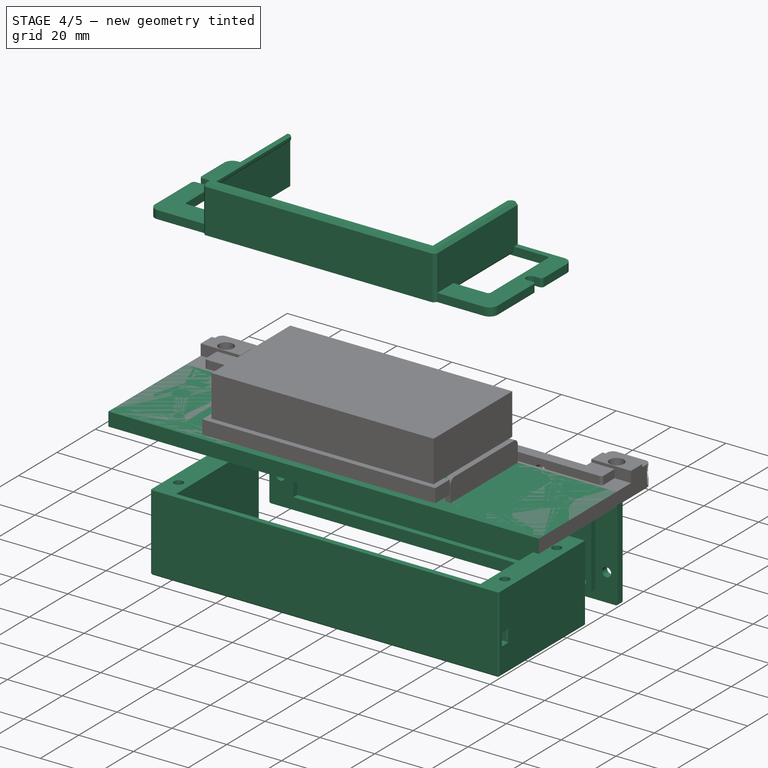
[diagram: stage 4 of 5 — iso view after this stage's code; geometry added in this stage tinted green]
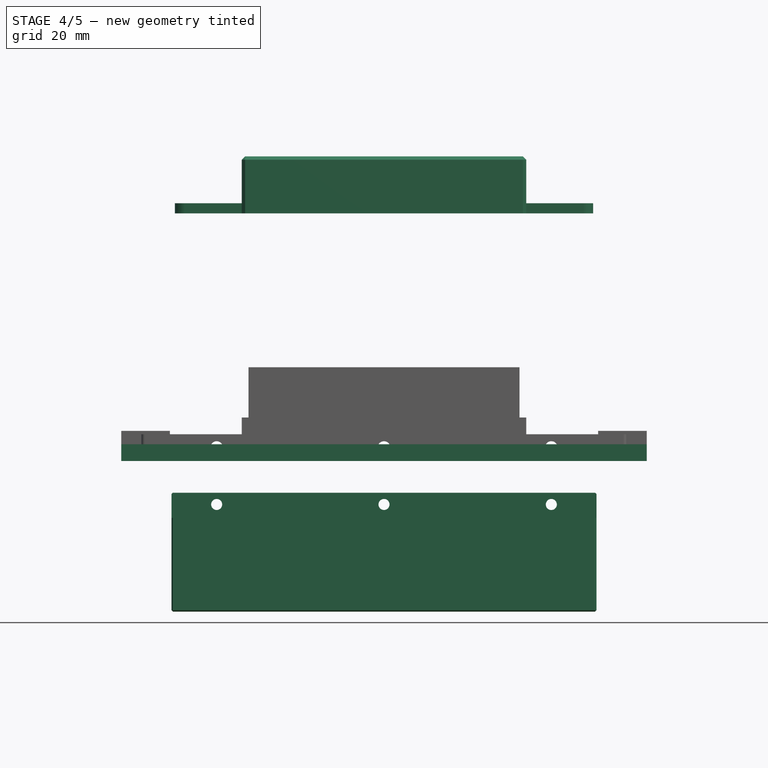
[diagram: stage 4 of 5 — front view after this stage's code; geometry added in this stage tinted green]
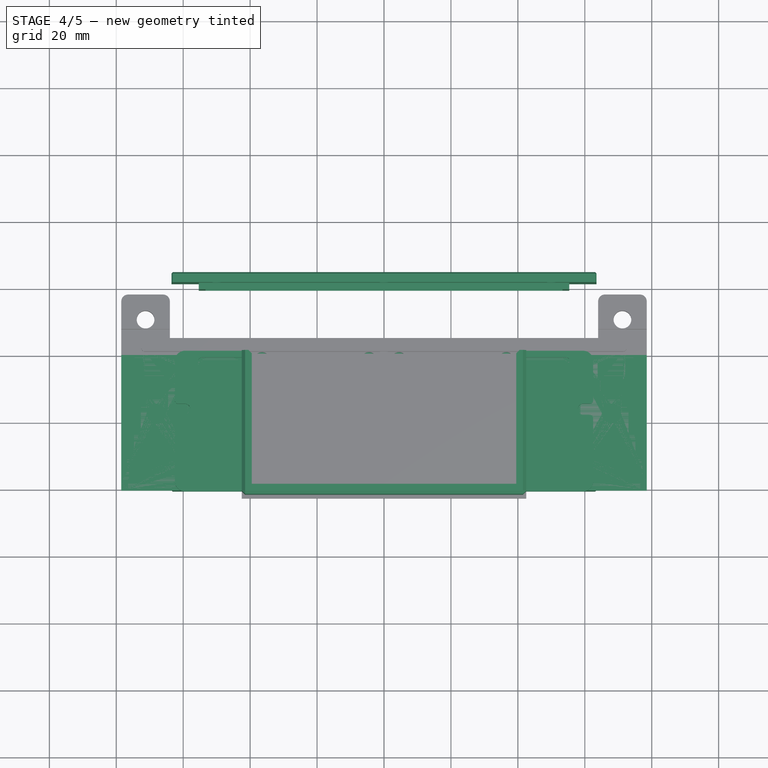
[diagram: stage 4 of 5 — top view after this stage's code; geometry added in this stage tinted green]
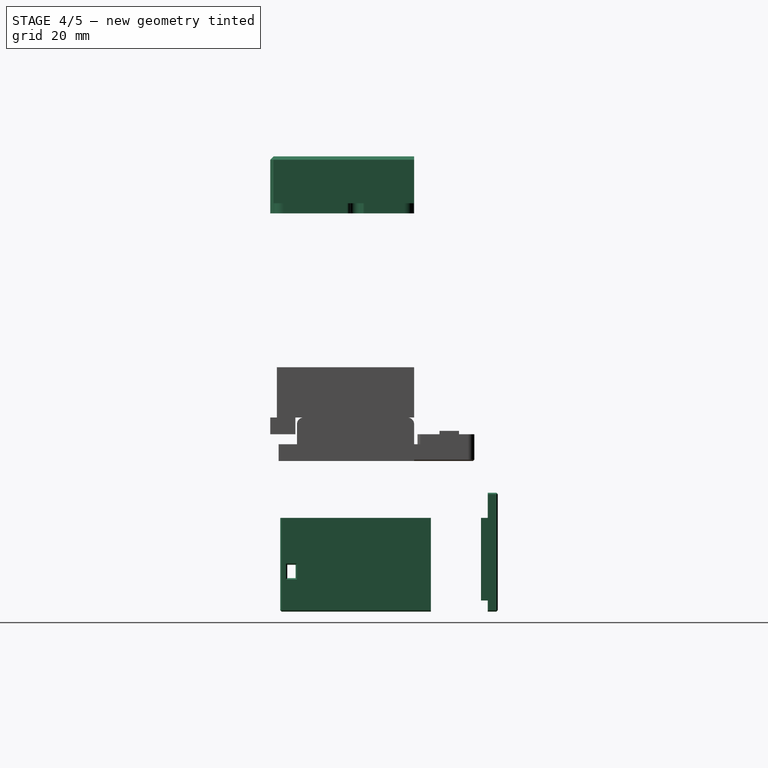
[diagram: stage 4 of 5 — right view after this stage's code; geometry added in this stage tinted green]
FEATURE [Sketcher::SketchObject] Sketch004
  FullyConstrained = true
  MapMode = 5
  Support = -> [XY_Plane001]
  sketch-geometry (4):
    g0: LineSegment StartX=-78.5 StartY=-0.5 StartZ=0 EndX=78.5 EndY=-0.5 EndZ=0
    g1: LineSegment StartX=78.5 StartY=-0.5 StartZ=0 EndX=78.5 EndY=-41 EndZ=0
    g2: LineSegment StartX=78.5 StartY=-41 StartZ=0 EndX=-78.5 EndY=-41 EndZ=0
    g3: LineSegment StartX=-78.5 StartY=-41 StartZ=0 EndX=-78.5 EndY=-0.5 EndZ=0
  constraints (12):
    c: Coincident(g0,g1)
    c: Coincident(g1,g2)
    c: Coincident(g2,g3)
    c: Coincident(g3,g0)
    c: Horizontal(g0)
    c: Horizontal(g2)
    c: Vertical(g1)
    c: Vertical(g3)
    c: DistanceY(g3,g3) = 40.5
    c: DistanceX(g2,g2) = 157
    c: DistanceX(g0,g-1) = 78.5
    c: DistanceY(g0,g-1) = 0.5
FEATURE [PartDesign::Pad] Pad003
  Direction = (1,1,1)
  Length = 5
  Length2 = 100
  Profile = -> Sketch004
  Type = 0
FEATURE [Sketcher::SketchObject] Sketch010
  FullyConstrained = true
  MapMode = 5
  Support = -> [XY_Plane002]
  sketch-geometry (4):
    g0: LineSegment StartX=-63.5 StartY=4.5 StartZ=0 EndX=63.5 EndY=4.5 EndZ=0
    g1: LineSegment StartX=63.5 StartY=4.5 StartZ=0 EndX=63.5 EndY=-40.5 EndZ=0
    g2: LineSegment StartX=63.5 StartY=-40.5 StartZ=0 EndX=-63.5 EndY=-40.5 EndZ=0
    g3: LineSegment StartX=-63.5 StartY=-40.5 StartZ=0 EndX=-63.5 EndY=4.5 EndZ=0
  constraints (12):
    c: Coincident(g0,g1)
    c: Coincident(g1,g2)
    c: Coincident(g2,g3)
    c: Coincident(g3,g0)
    c: Horizontal(g0)
    c: Horizontal(g2)
    c: Vertical(g1)
    c: Vertical(g3)
    c: DistanceX(g2,g2) = 127
    c: DistanceX(g2,g-1) = 63.5
    c: DistanceY(g2,g-1) = 40.5
    c: DistanceY(g1,g1) = 45
FEATURE [PartDesign::Pad] Pad005
  Direction = (1,1,1)
  Length = 28
  Length2 = 100
  Profile = -> Sketch010
  Type = 0
FEATURE [Sketcher::SketchObject] Sketch011
  FullyConstrained = true
  MapMode = 5
  Placement = pos=(0,0,28) rot=(0,0,1;0rad)
  Support = -> [Pad005]
  sketch-geometry (4):
    g0: LineSegment StartX=-55.5 StartY=4.5 StartZ=0 EndX=55.5 EndY=4.5 EndZ=0
    g1: LineSegment StartX=55.5 StartY=4.5 StartZ=0 EndX=55.5 EndY=-38.5 EndZ=0
    g2: LineSegment StartX=55.5 StartY=-38.5 StartZ=0 EndX=-55.5 EndY=-38.5 EndZ=0
    g3: LineSegment StartX=-55.5 StartY=-38.5 StartZ=0 EndX=-55.5 EndY=4.5 EndZ=0
  constraints (12):
    c: Coincident(g0,g1)
    c: Coincident(g1,g2)
    c: Coincident(g2,g3)
    c: Coincident(g3,g0)
    c: Horizontal(g0)
    c: Horizontal(g2)
    c: Vertical(g1)
    c: Vertical(g3)
    c: DistanceX(g2,g2) = 111
    c: DistanceX(g0,g-1) = 55.5
    c: DistanceY(g1,g1) = 43
    c: DistanceY(g1,g-1) = 38.5
FEATURE [PartDesign::Pocket] Pocket006
  BaseFeature = -> Pad005
  Length = 25
  Length2 = 100
  Profile = -> Sketch011
  Type = 0
FEATURE [Sketcher::SketchObject] Sketch012
  FullyConstrained = true
  MapMode = 5
  Placement = pos=(0,0,0) rot=(1,0,0;3.14159rad)
  Support = -> [Pocket006]
  sketch-geometry (4):
    g0: Circle CenterX=-59.5 CenterY=31.5 CenterZ=0 NormalX=0 NormalY=0 NormalZ=1 AngleXU=0 Radius=1.65
    g1: Circle CenterX=-59.5 CenterY=4.5 CenterZ=0 NormalX=0 NormalY=0 NormalZ=1 AngleXU=0 Radius=1.65
    g2: Circle CenterX=59.5 CenterY=31.5 CenterZ=0 NormalX=0 NormalY=0 NormalZ=1 AngleXU=0 Radius=1.65
    g3: Circle CenterX=59.5 CenterY=4.5 CenterZ=0 NormalX=0 NormalY=0 NormalZ=1 AngleXU=0 Radius=1.65
  constraints (12):
    c: DistanceX(g2,g3) = 0
    c: DistanceX(g0,g1) = 0
    c: DistanceY(g1,g0) = 27
    c: DistanceY(g3,g2) = 27
    c: Radius(g0) = 1.65
    c: Radius(g1) = 1.65
    c: Radius(g2) = 1.65
    c: Radius(g3) = 1.65
    c: DistanceY(g-1,g1) = 4.5
    c: DistanceX(g1,g-1) = 59.5
    c: DistanceX(g-1,g3) = 59.5
    c: DistanceY(g-1,g3) = 4.5
FEATURE [PartDesign::Pocket] Pocket007
  BaseFeature = -> Pocket006
  Length = 5
  Length2 = 100
  Profile = -> Sketch012
  Type = 1
FEATURE [Sketcher::SketchObject] Sketch018
  FullyConstrained = true
  MapMode = 5
  Placement = pos=(0,4.5,0) rot=(0,0.707107,0.707107;3.14159rad)
  Support = -> [Pocket007]
  sketch-geometry (2):
    g0: Circle CenterX=-59.5 CenterY=10 CenterZ=0 NormalX=0 NormalY=0 NormalZ=1 AngleXU=0 Radius=2.35
    g1: Circle CenterX=59.5 CenterY=10 CenterZ=0 NormalX=0 NormalY=0 NormalZ=1 AngleXU=0 Radius=2.35
  constraints (6):
    c: DistanceX(g0,g-1) = 59.5
    c: DistanceX(g-1,g1) = 59.5
    c: Radius(g0) = 2.35
    c: Radius(g1) = 2.35
    c: DistanceY(g-1,g0) = 10
    c: DistanceY(g-1,g1) = 10
FEATURE [PartDesign::Pocket] Pocket013
  BaseFeature = -> Pocket007
  Length = 5
  Length2 = 100
  Profile = -> Sketch018
  Type = 0
FEATURE [Sketcher::SketchObject] Sketch019
  FullyConstrained = true
  MapMode = 5
  Placement = pos=(0,0,0) rot=(1,0,0;1.5708rad)
  Support = -> [XZ_Plane003]
  sketch-geometry (4):
    g0: LineSegment StartX=-63.5 StartY=7.5 StartZ=0 EndX=63.5 EndY=7.5 EndZ=0
    g1: LineSegment StartX=63.5 StartY=7.5 StartZ=0 EndX=63.5 EndY=-28 EndZ=0
    g2: LineSegment StartX=63.5 StartY=-28 StartZ=0 EndX=-63.5 EndY=-28 EndZ=0
    g3: LineSegment StartX=-63.5 StartY=-28 StartZ=0 EndX=-63.5 EndY=7.5 EndZ=0
  constraints (12):
    c: Coincident(g0,g1)
    c: Coincident(g1,g2)
    c: Coincident(g2,g3)
    c: Coincident(g3,g0)
    c: Horizontal(g0)
    c: Horizontal(g2)
    c: Vertical(g1)
    c: Vertical(g3)
    c: DistanceX(g2,g2) = 127
    c: DistanceY(g1,g1) = 35.5
    c: DistanceX(g0,g-1) = 63.5
    c: DistanceY(g2,g-1) = 28
FEATURE [PartDesign::Pad] Pad006
  Direction = (1,1,1)
  Length = 3
  Length2 = 100
  Placement = pos=(0,0,0) rot=(1,0,0;1.5708rad)
  Profile = -> Sketch019
  Reversed = true
  Type = 0
FEATURE [Sketcher::SketchObject] Sketch020
  FullyConstrained = true
  MapMode = 5
  Placement = pos=(0,3,-7e-16) rot=(-1,0,0;1.5708rad)
  Support = -> [Pad006]
  sketch-geometry (5):
    g0: Circle CenterX=-59.5 CenterY=18 CenterZ=0 NormalX=0 NormalY=0 NormalZ=1 AngleXU=0 Radius=1.65
    g1: Circle CenterX=59.5 CenterY=18 CenterZ=0 NormalX=0 NormalY=0 NormalZ=1 AngleXU=0 Radius=1.65
    g2: Circle CenterX=-50 CenterY=-4 CenterZ=0 NormalX=0 NormalY=0 NormalZ=1 AngleXU=0 Radius=1.65
    g3: Circle CenterX=0 CenterY=-4 CenterZ=0 NormalX=0 NormalY=0 NormalZ=1 AngleXU=0 Radius=1.65
    g4: Circle CenterX=50 CenterY=-4 CenterZ=0 NormalX=0 NormalY=0 NormalZ=1 AngleXU=0 Radius=1.65
  constraints (15):
    c: DistanceY(g3,g-1) = 4
    c: DistanceY(g4,g-1) = 4
    c: DistanceY(g2,g-1) = 4
    c: DistanceX(g3,g-1) = 0
    c: DistanceX(g-1,g4) = 50
    c: DistanceX(g2,g-1) = 50
    c: DistanceX(g0,g-1) = 59.5
    c: DistanceX(g-1,g1) = 59.5
    c: DistanceY(g-1,g1) = 18
    c: DistanceY(g-1,g0) = 18
    c: Radius(g0) = 1.65
    c: Radius(g2) = 1.65
    c: Radius(g3) = 1.65
    c: Radius(g4) = 1.65
    c: Radius(g1) = 1.65
FEATURE [PartDesign::Pocket] Pocket014
  BaseFeature = -> Pad006
  Length = 5
  Length2 = 100
  Placement = pos=(0,0,0) rot=(1,0,0;1.5708rad)
  Profile = -> Sketch020
  Type = 0
FEATURE [PartDesign::Chamfer] Chamfer
  Angle = 45
  Base = -> Pocket014 [Edge8,Edge5,Edge1,Edge2]
  BaseFeature = -> Pocket014
  ChamferType = 0
  FlipDirection = false
  Placement = pos=(0,0,0) rot=(1,0,0;1.5708rad)
  Size = 0.4
  Size2 = 1
  SupportTransform = false
FEATURE [PartDesign::Chamfer] Chamfer001
  Angle = 45
  Base = -> Pocket013 [Edge18,Edge11,Edge13,Edge12,Edge20]
  BaseFeature = -> Pocket013
  ChamferType = 0
  FlipDirection = false
  Size = 0.4
  Size2 = 1
  SupportTransform = false
FEATURE [PartDesign::Body] Body
  Group = -> [Sketch,Pad,Fillet,Sketch001,Pad001,Fillet001,Sketch002,Pocket,Sketch003,Pad002,Sketch006,Pocket001,Fillet002,Sketch009,Pocket005,Sketch014,Pocket009,Sketch015,Pocket010,Fillet007,Sketch016,Pocket011,Sketch017,Pocket012,Fillet008,Sketch022,Pocket016]
  Origin = -> Origin
  Tip = -> Pocket016
FEATURE [Sketcher::SketchObject] Sketch023
  FullyConstrained = true
  MapMode = 5
  Placement = pos=(-63.5,0,0) rot=(0.57735,-0.57735,-0.57735;2.0944rad)
  Support = -> [Chamfer001]
  sketch-geometry (4):
    g0: LineSegment StartX=38.4 StartY=14 StartZ=0 EndX=35.9 EndY=14 EndZ=0
    g1: LineSegment StartX=35.9 StartY=14 StartZ=0 EndX=35.9 EndY=10 EndZ=0
    g2: LineSegment StartX=35.9 StartY=10 StartZ=0 EndX=38.4 EndY=10 EndZ=0
    g3: LineSegment StartX=38.4 StartY=10 StartZ=0 EndX=38.4 EndY=14 EndZ=0
  constraints (12):
    c: Coincident(g0,g1)
    c: Coincident(g1,g2)
    c: Coincident(g2,g3)
    c: Coincident(g3,g0)
    c: Horizontal(g0)
    c: Horizontal(g2)
    c: Vertical(g1)
    c: Vertical(g3)
    c: Distance(g1) = 4
    c: DistanceX(g0,g0) = 2.5
    c: DistanceX(g-1,g1) = 35.9
    c: DistanceY(g-1,g1) = 10
FEATURE [PartDesign::Pocket] Pocket017
  BaseFeature = -> Chamfer001
  Length = 5
  Length2 = 100
  Profile = -> Sketch023
  Type = 1
FEATURE [PartDesign::Body] Body002
  Group = -> [Sketch010,Pad005,Sketch011,Pocket006,Sketch012,Pocket007,Sketch018,Pocket013,Chamfer001,Sketch023,Pocket017]
  Origin = -> Origin002
  Placement = pos=(0,0,-28) rot=(0,0,1;0rad)
  Tip = -> Pocket017
FEATURE [Sketcher::SketchObject] Sketch024
  FullyConstrained = true
  MapMode = 5
  Placement = pos=(0,0,0) rot=(1,0,0;1.5708rad)
  Support = -> [Chamfer]
  sketch-geometry (8):
    g0: LineSegment StartX=-55.35 StartY=0 StartZ=0 EndX=55.35 EndY=0 EndZ=0
    g1: LineSegment StartX=55.35 StartY=0 StartZ=0 EndX=55.35 EndY=-24.7 EndZ=0
    g2: LineSegment StartX=55.35 StartY=-24.7 StartZ=0 EndX=-55.35 EndY=-24.7 EndZ=0
    g3: LineSegment StartX=-55.35 StartY=-24.7 StartZ=0 EndX=-55.35 EndY=0 EndZ=0
    g4: LineSegment StartX=-53.35 StartY=-2 StartZ=0 EndX=53.35 EndY=-2 EndZ=0
    g5: LineSegment StartX=53.35 StartY=-2 StartZ=0 EndX=53.35 EndY=-22.7 EndZ=0
    g6: LineSegment StartX=53.35 StartY=-22.7 StartZ=0 EndX=-53.35 EndY=-22.7 EndZ=0
    g7: LineSegment StartX=-53.35 StartY=-22.7 StartZ=0 EndX=-53.35 EndY=-2 EndZ=0
  constraints (24):
    c: Coincident(g0,g1)
    c: Coincident(g1,g2)
    c: Coincident(g2,g3)
    c: Coincident(g3,g0)
    c: Horizontal(g0)
    c: Horizontal(g2)
    c: Vertical(g1)
    c: Vertical(g3)
    c: DistanceX(g0,g0) = 110.7
    c: DistanceY(g3,g3) = 24.7
    c: DistanceX(g0,g-1) = 55.35
    c: DistanceY(g-1,g0) = 0
    c: Coincident(g4,g5)
    c: Coincident(g5,g6)
    c: Coincident(g6,g7)
    c: Coincident(g7,g4)
    c: Horizontal(g4)
    c: Horizontal(g6)
    c: Vertical(g5)
    c: Vertical(g7)
    c: DistanceX(g4,g4) = 106.7
    c: DistanceY(g5,g5) = 20.7
    c: DistanceY(g4,g0) = 2
    c: DistanceX(g4,g0) = 2
FEATURE [PartDesign::Pad] Pad007
  BaseFeature = -> Chamfer
  Direction = (1,1,1)
  Length = 2
  Length2 = 100
  Placement = pos=(0,0,0) rot=(1,0,0;1.5708rad)
  Profile = -> Sketch024
  Type = 0
FEATURE [Part::Chamfer] Chamfer009
  Base = -> Body003001
  Edges = 13 edges r=0.4: [Edge4,Edge22,Edge24,Edge25,Edge26,Edge27,Edge28,Edge29,Edge30,Edge31,Edge32,Edge33,Edge34]
  Placement = pos=(0,17,-17) rot=(0,0,1;0rad)
FEATURE [Part::Chamfer] Chamfer010
  Base = -> Body002001
  Edges = 8 edges r=0.4: [Edge16,Edge17,Edge18,Edge19,Edge32,Edge33,Edge34,Edge35]
  Placement = pos=(0,0,-17) rot=(0,0,1;0rad)
FEATURE [Part::Chamfer] Chamfer012
  Base = -> Chamfer011
  Edges = 2 edges r=1.5: [Edge5,Edge51]
  Placement = pos=(0,0,74) rot=(0,0,1;0rad)
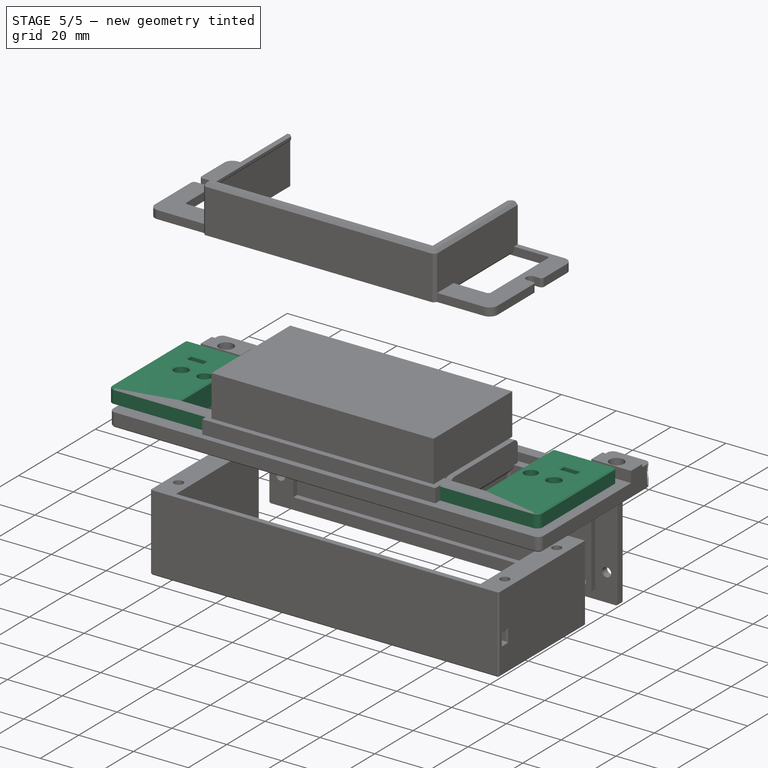
[diagram: stage 5 of 5 — iso view after this stage's code; geometry added in this stage tinted green]
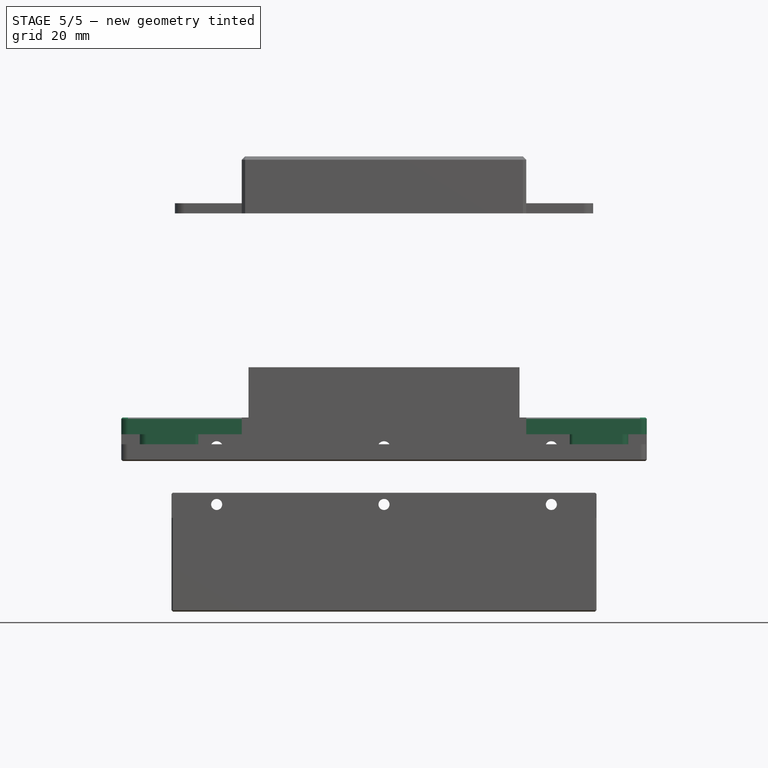
[diagram: stage 5 of 5 — front view after this stage's code; geometry added in this stage tinted green]
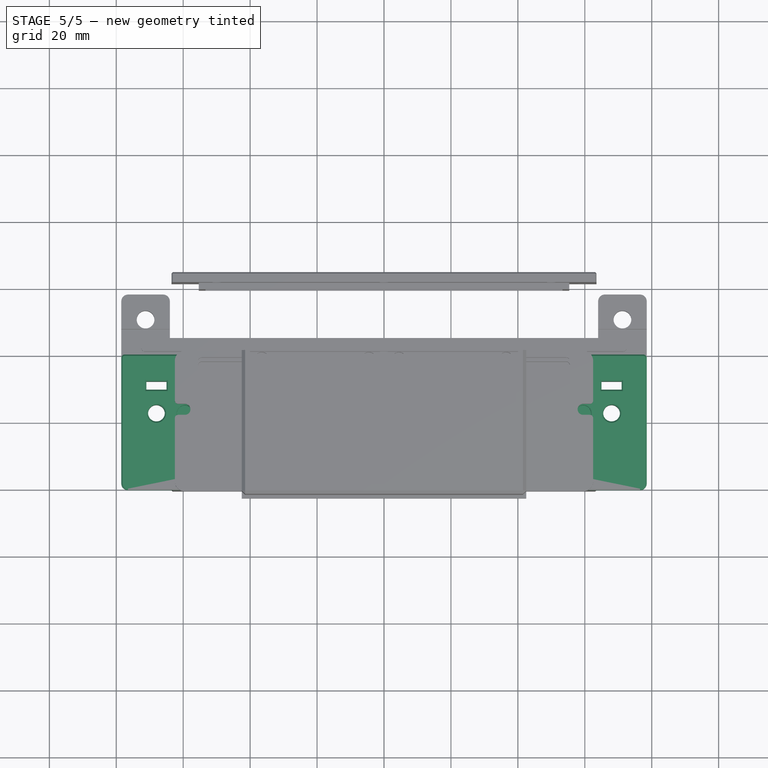
[diagram: stage 5 of 5 — top view after this stage's code; geometry added in this stage tinted green]
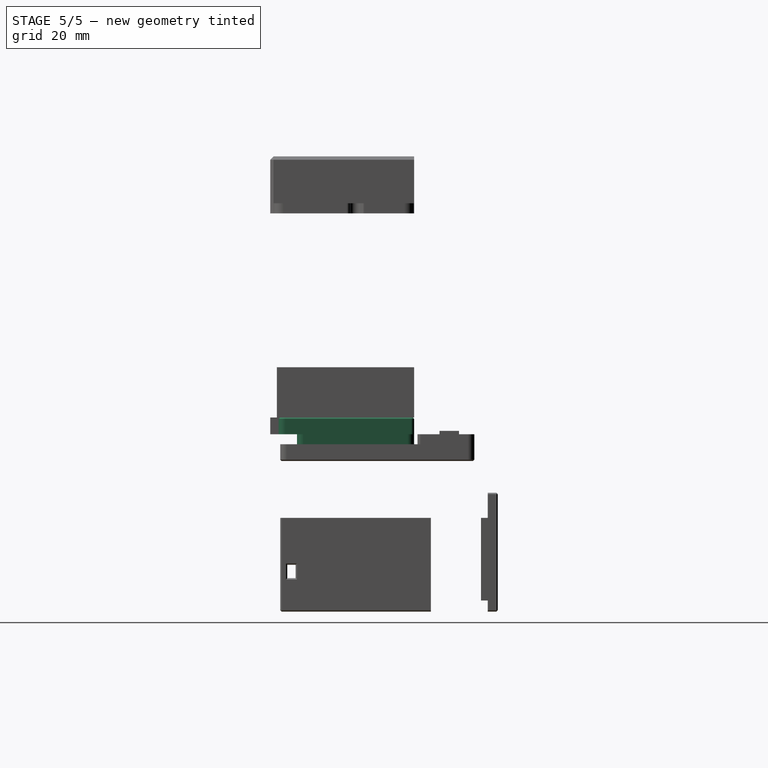
[diagram: stage 5 of 5 — right view after this stage's code; geometry added in this stage tinted green]
FEATURE [Sketcher::SketchObject] Sketch005
  FullyConstrained = true
  MapMode = 5
  Placement = pos=(0,0,5) rot=(0,0,1;0rad)
  Support = -> [Pad003]
  sketch-geometry (4):
    g0: LineSegment StartX=-73 StartY=-0.5 StartZ=0 EndX=73 EndY=-0.5 EndZ=0
    g1: LineSegment StartX=73 StartY=-0.5 StartZ=0 EndX=73 EndY=-35.5 EndZ=0
    g2: LineSegment StartX=73 StartY=-35.5 StartZ=0 EndX=-73 EndY=-35.5 EndZ=0
    g3: LineSegment StartX=-73 StartY=-35.5 StartZ=0 EndX=-73 EndY=-0.5 EndZ=0
  constraints (12):
    c: Coincident(g0,g1)
    c: Coincident(g1,g2)
    c: Coincident(g2,g3)
    c: Coincident(g3,g0)
    c: Horizontal(g0)
    c: Horizontal(g2)
    c: Vertical(g1)
    c: Vertical(g3)
    c: DistanceY(g3,g3) = 35
    c: DistanceY(g0,g-1) = 0.5
    c: DistanceX(g2,g2) = 146
    c: DistanceX(g-1,g1) = 73
FEATURE [PartDesign::Pad] Pad004
  BaseFeature = -> Pad003
  Direction = (1,1,1)
  Length = 8
  Length2 = 100
  Profile = -> Sketch005
  Reversed = true
  Type = 0
FEATURE [PartDesign::Fillet] Fillet003
  Base = -> Pad004 [Edge27,Edge25,Edge28,Edge30]
  BaseFeature = -> Pad004
  Radius = 2
  SupportTransform = false
FEATURE [Sketcher::SketchObject] Sketch007
  FullyConstrained = true
  MapMode = 5
  Placement = pos=(0,0,-3) rot=(1,0,0;3.14159rad)
  Support = -> [Fillet003]
  sketch-geometry (4):
    g0: LineSegment StartX=-55.5 StartY=36 StartZ=0 EndX=55.5 EndY=36 EndZ=0
    g1: LineSegment StartX=55.5 StartY=36 StartZ=0 EndX=55.5 EndY=0 EndZ=0
    g2: LineSegment StartX=55.5 StartY=0 StartZ=0 EndX=-55.5 EndY=0 EndZ=0
    g3: LineSegment StartX=-55.5 StartY=0 StartZ=0 EndX=-55.5 EndY=36 EndZ=0
  constraints (12):
    c: Coincident(g0,g1)
    c: Coincident(g1,g2)
    c: Coincident(g2,g3)
    c: Coincident(g3,g0)
    c: Horizontal(g0)
    c: Horizontal(g2)
    c: Vertical(g1)
    c: Vertical(g3)
    c: DistanceX(g0,g0) = 111
    c: DistanceY(g3,g3) = 36
    c: DistanceX(g2,g-1) = 55.5
    c: DistanceY(g-1,g1) = 0
FEATURE [PartDesign::Pocket] Pocket002
  BaseFeature = -> Fillet003
  Length = 9
  Length2 = 100
  Profile = -> Sketch007
  Type = 0
FEATURE [PartDesign::Pocket] Pocket003
  BaseFeature = -> Pocket002
  Length = 5
  Length2 = 100
  Profile = -> Sketch007
  Type = 0
FEATURE [Sketcher::SketchObject] Sketch008
  FullyConstrained = true
  MapMode = 5
  Placement = pos=(0,0,-3) rot=(1,0,0;3.14159rad)
  Support = -> [Pocket003]
  sketch-geometry (4):
    g0: Circle CenterX=-59.5 CenterY=31.5 CenterZ=0 NormalX=0 NormalY=0 NormalZ=1 AngleXU=0 Radius=2.35
    g1: Circle CenterX=-59.5 CenterY=4.5 CenterZ=0 NormalX=0 NormalY=0 NormalZ=1 AngleXU=0 Radius=2.35
    g2: Circle CenterX=59.5 CenterY=31.5 CenterZ=0 NormalX=0 NormalY=0 NormalZ=1 AngleXU=0 Radius=2.35
    g3: Circle CenterX=59.5 CenterY=4.5 CenterZ=0 NormalX=0 NormalY=0 NormalZ=1 AngleXU=0 Radius=2.35
  constraints (12):
    c: DistanceX(g1,g-1) = 59.5
    c: DistanceX(g-1,g3) = 59.5
    c: DistanceX(g-1,g2) = 59.5
    c: DistanceX(g0,g-1) = 59.5
    c: DistanceY(g-1,g1) = 4.5
    c: DistanceY(g-1,g3) = 4.5
    c: DistanceY(g1,g0) = 27
    c: DistanceY(g3,g2) = 27
    c: Radius(g0) = 2.35
    c: Radius(g1) = 2.35
    c: Radius(g2) = 2.35
    c: Radius(g3) = 2.35
FEATURE [PartDesign::Pocket] Pocket004
  BaseFeature = -> Pocket003
  Length = 5
  Length2 = 100
  Profile = -> Sketch008
  Type = 0
FEATURE [PartDesign::Fillet] Fillet004
  Base = -> Pocket004 [Edge22,Edge25,Edge32,Edge35]
  BaseFeature = -> Pocket004
  Radius = 1
  SupportTransform = false
FEATURE [PartDesign::Fillet] Fillet005
  Base = -> Fillet004 [Edge54,Edge58]
  BaseFeature = -> Fillet004
  Radius = 2
  SupportTransform = false
FEATURE [PartDesign::Fillet] Fillet006
  Base = -> Fillet005 [Edge44,Edge27]
  BaseFeature = -> Fillet005
  Radius = 1
  SupportTransform = false
FEATURE [Sketcher::SketchObject] Sketch013
  FullyConstrained = true
  MapMode = 5
  Placement = pos=(0,0,5) rot=(0,0,1;0rad)
  Support = -> [Fillet006]
  sketch-geometry (2):
    g0: Circle CenterX=-59.5 CenterY=-18 CenterZ=0 NormalX=0 NormalY=0 NormalZ=1 AngleXU=0 Radius=2.35
    g1: Circle CenterX=59.5 CenterY=-18 CenterZ=0 NormalX=0 NormalY=0 NormalZ=1 AngleXU=0 Radius=2.35
  constraints (6):
    c: DistanceY(g0,g-1) = 18
    c: DistanceY(g1,g-1) = 18
    c: DistanceX(g0,g-1) = 59.5
    c: DistanceX(g-1,g1) = 59.5
    c: Radius(g0) = 2.35
    c: Radius(g1) = 2.35
FEATURE [PartDesign::Pocket] Pocket008
  BaseFeature = -> Fillet006
  Length = 5
  Length2 = 100
  Profile = -> Sketch013
  Type = 0
FEATURE [Sketcher::SketchObject] Sketch021
  FullyConstrained = true
  MapMode = 5
  Placement = pos=(0,0,5) rot=(0,0,1;0rad)
  Support = -> [Pocket008]
  sketch-geometry (10):
    g0: Circle CenterX=-68 CenterY=-18 CenterZ=0 NormalX=0 NormalY=0 NormalZ=1 AngleXU=0 Radius=2.5
    g1: Circle CenterX=68 CenterY=-18 CenterZ=0 NormalX=0 NormalY=0 NormalZ=1 AngleXU=0 Radius=2.5
    g2: LineSegment StartX=-71 StartY=-8.5 StartZ=0 EndX=-65 EndY=-8.5 EndZ=0
    g3: LineSegment StartX=-65 StartY=-8.5 StartZ=0 EndX=-65 EndY=-11 EndZ=0
    g4: LineSegment StartX=-65 StartY=-11 StartZ=0 EndX=-71 EndY=-11 EndZ=0
    g5: LineSegment StartX=-71 StartY=-11 StartZ=0 EndX=-71 EndY=-8.5 EndZ=0
    g6: LineSegment StartX=65 StartY=-8.5 StartZ=0 EndX=71 EndY=-8.5 EndZ=0
    g7: LineSegment StartX=71 StartY=-8.5 StartZ=0 EndX=71 EndY=-11 EndZ=0
    g8: LineSegment StartX=71 StartY=-11 StartZ=0 EndX=65 EndY=-11 EndZ=0
    g9: LineSegment StartX=65 StartY=-11 StartZ=0 EndX=65 EndY=-8.5 EndZ=0
  constraints (30):
    c: DistanceX(g-1,g1) = 68
    c: DistanceX(g0,g-1) = 68
    c: DistanceY(g0,g-1) = 18
    c: DistanceY(g1,g-1) = 18
    c: Radius(g1) = 2.5
    c: Radius(g0) = 2.5
    c: Coincident(g2,g3)
    c: Coincident(g3,g4)
    c: Coincident(g4,g5)
    c: Coincident(g5,g2)
    c: Horizontal(g2)
    c: Horizontal(g4)
    c: Vertical(g3)
    c: Vertical(g5)
    c: Coincident(g6,g7)
    c: Coincident(g7,g8)
    c: Coincident(g8,g9)
    c: Coincident(g9,g6)
    c: Horizontal(g6)
    c: Horizontal(g8)
    c: Vertical(g7)
    c: Vertical(g9)
    c: DistanceX(g6,g6) = 6
    c: DistanceX(g1,g6) = 3
    c: DistanceX(g4,g0) = 3
    c: DistanceX(g2,g2) = 6
    c: DistanceY(g5,g5) = 2.5
    c: DistanceY(g9,g9) = 2.5
    c: DistanceY(g0,g3) = 7
    c: DistanceY(g1,g7) = 7
FEATURE [PartDesign::Pocket] Pocket015
  BaseFeature = -> Pocket008
  Length = 5
  Length2 = 100
  Profile = -> Sketch021
  Type = 1
FEATURE [PartDesign::Body] Body003
  Group = -> [Sketch019,Pad006,Sketch020,Pocket014,Chamfer,Sketch024,Pad007]
  Origin = -> Origin003
  Placement = pos=(0,4.5,0) rot=(0,0,1;0rad)
  Tip = -> Pad007
FEATURE [Part::Refine] Body004
  Source = -> Body
FEATURE [Part::Refine] Body001001
  Source = -> Body001
FEATURE [Part::Refine] Body002001
  Source = -> Body002
FEATURE [Part::Feature] Part__Feature034  label="4010 FAN"
  Placement = pos=(20.5,-18,-10) rot=(-1,0,0;1.5708rad)
  shape: bbox 40 x 40 x 10 mm, 104 faces (baked)
FEATURE [Part::Feature] Part__Feature035  label="4010 FAN001"
  Placement = pos=(-20.5,-18,-10) rot=(-1,0,0;1.5708rad)
  shape: bbox 40 x 40 x 10 mm, 104 faces (baked)
FEATURE [Part::Refine] Body003001
  Source = -> Body003
FEATURE [Part::Chamfer] Chamfer002
  Base = -> Body001001
  Edges = 20 edges r=0.4: [Edge64,Edge65,Edge66,Edge67,Edge68,Edge75,Edge76,Edge77,Edge78,Edge79,Edge80,Edge82,Edge85,Edge87,Edge89,Edge94,Edge96,Edge99,Edge101,Edge103]
FEATURE [Part::Chamfer] Chamfer003
  Base = -> Chamfer002
  Edges = 2 edges r=0.2: [Edge80,Edge81]
FEATURE [Part::Chamfer] Chamfer008
  Base = -> Chamfer003
  Edges = 14 edges r=0.4: [Edge3,Edge4,Edge5,Edge6,Edge7,Edge8,Edge9,Edge10,Edge11,Edge12,Edge13,Edge14,Edge15,Edge16]
  Placement = pos=(0,0,-32) rot=(0,0,1;0rad)
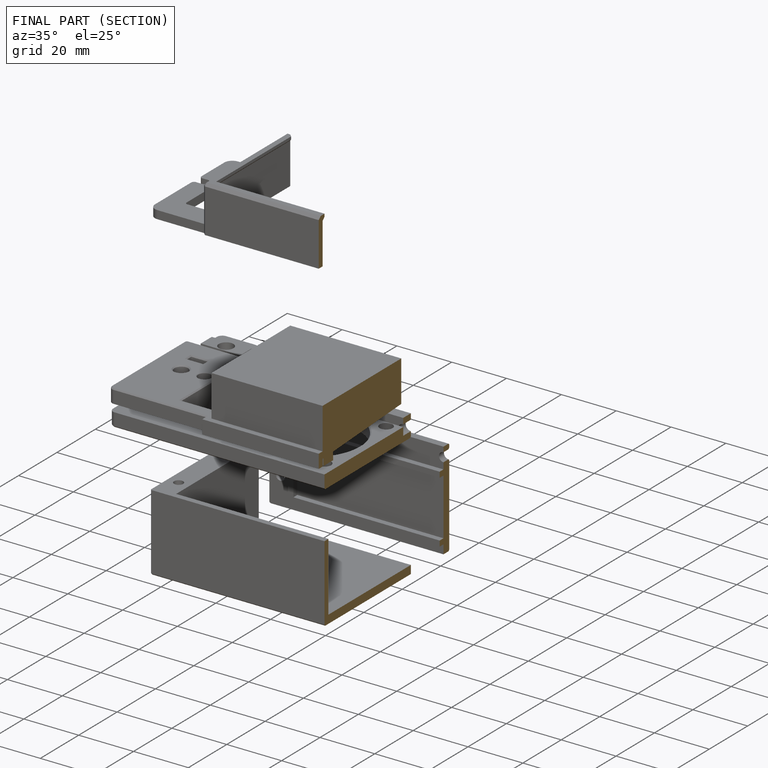
[diagram: finished part — half-section view (interior)]
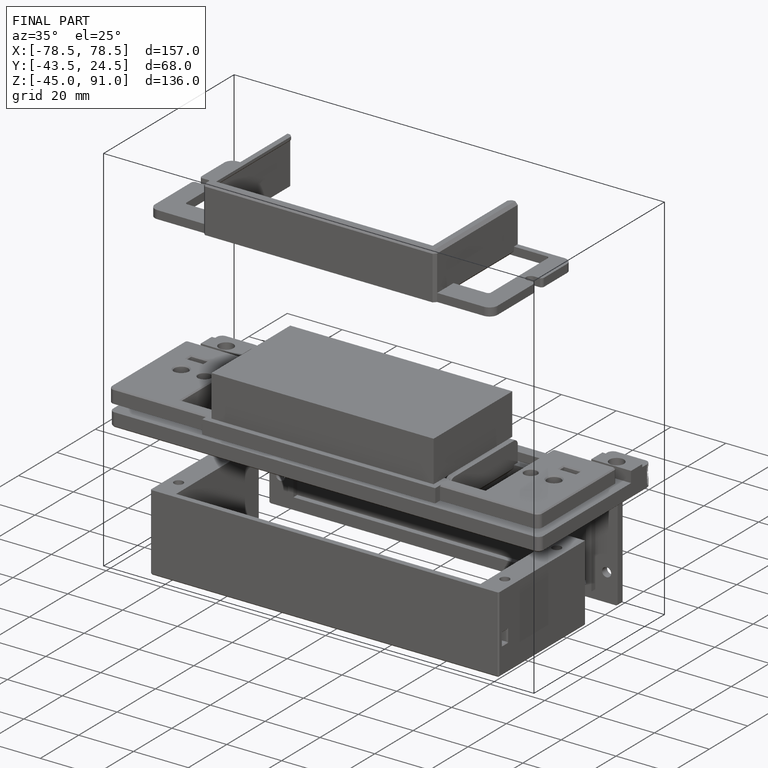
[diagram: finished part — iso view with bounding-box wireframe]
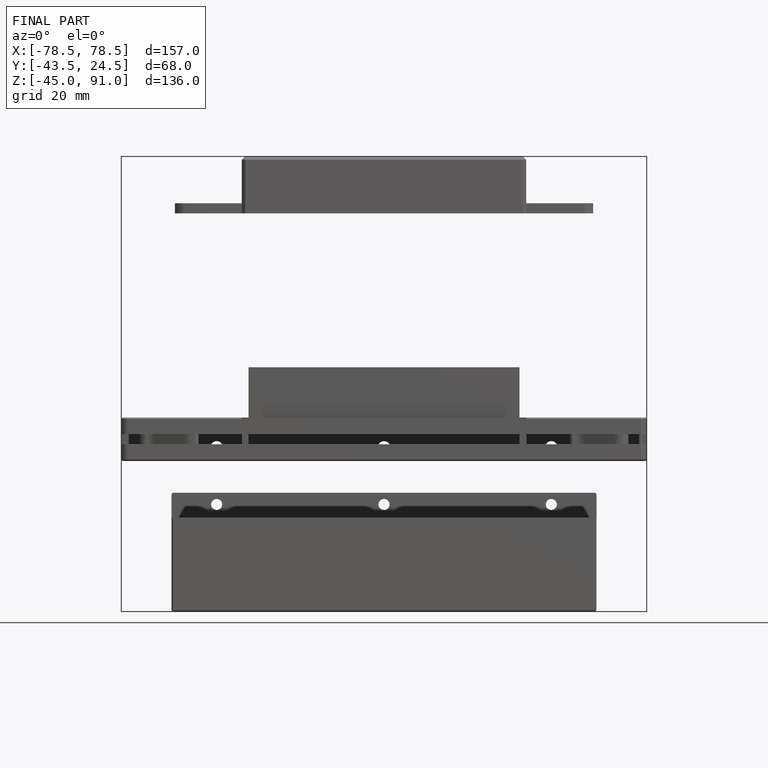
[diagram: finished part — front view with bounding-box wireframe]
